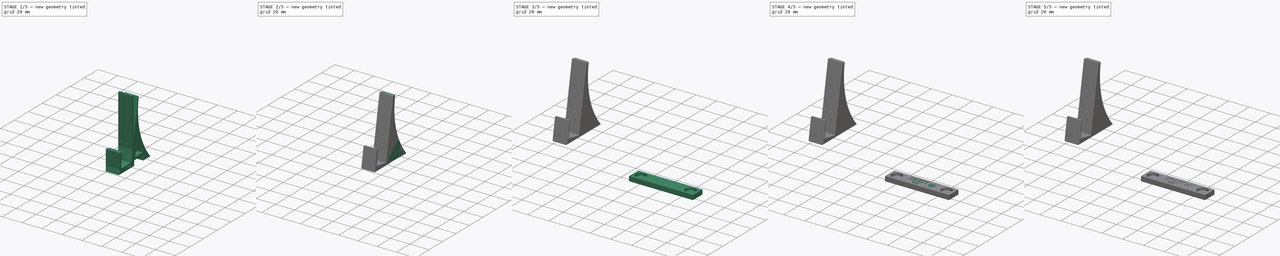
[diagram: build sequence overview — one tinted view per stage of 5, left to right]
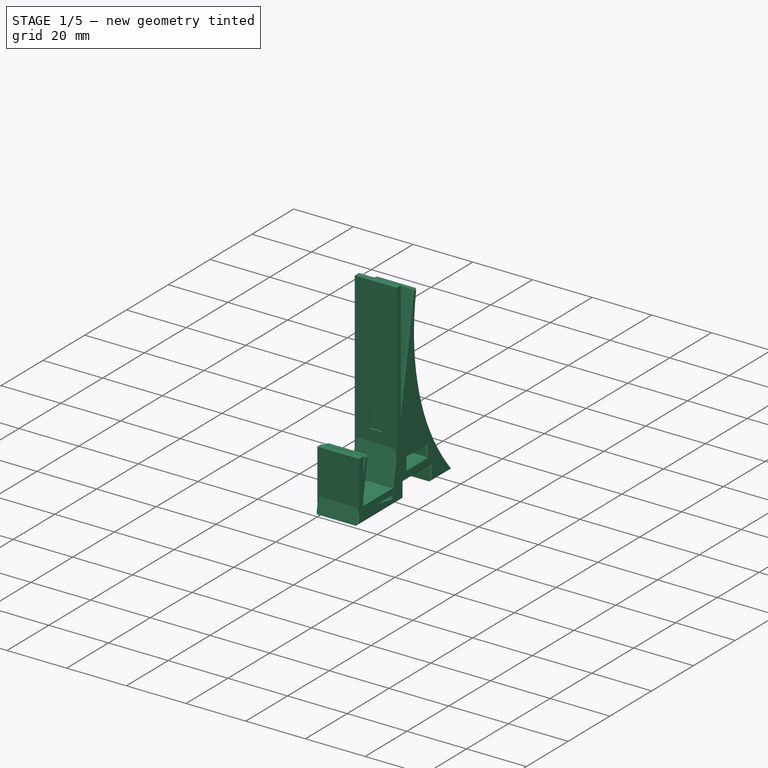
[diagram: stage 1 of 5 — iso view after this stage's code; geometry added in this stage tinted green]
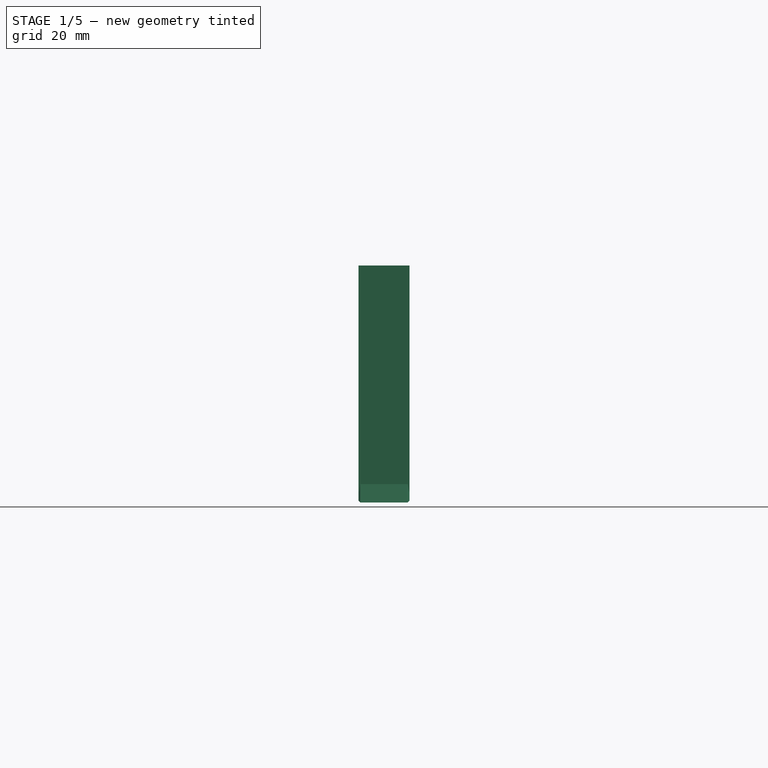
[diagram: stage 1 of 5 — front view after this stage's code; geometry added in this stage tinted green]
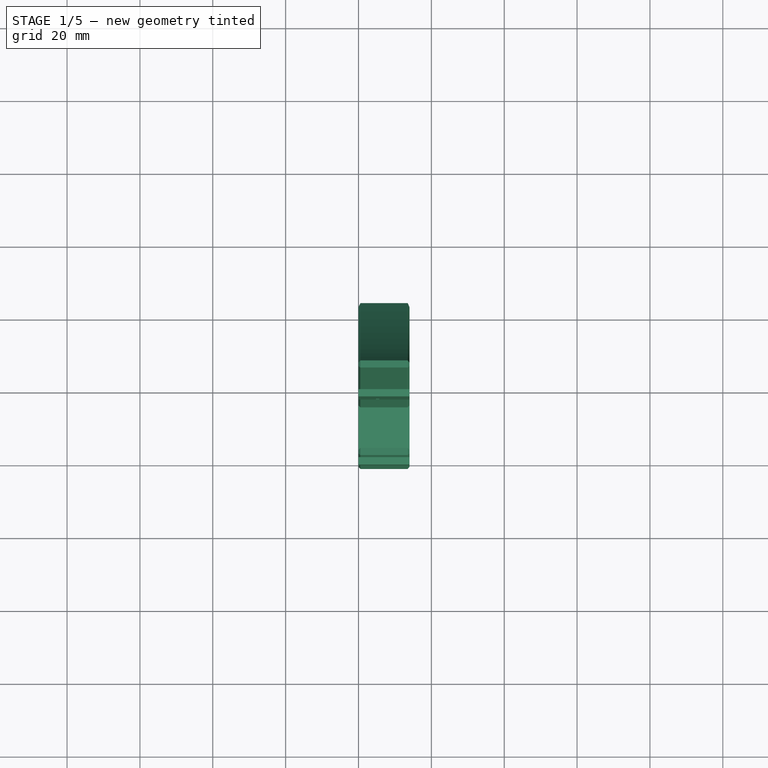
[diagram: stage 1 of 5 — top view after this stage's code; geometry added in this stage tinted green]
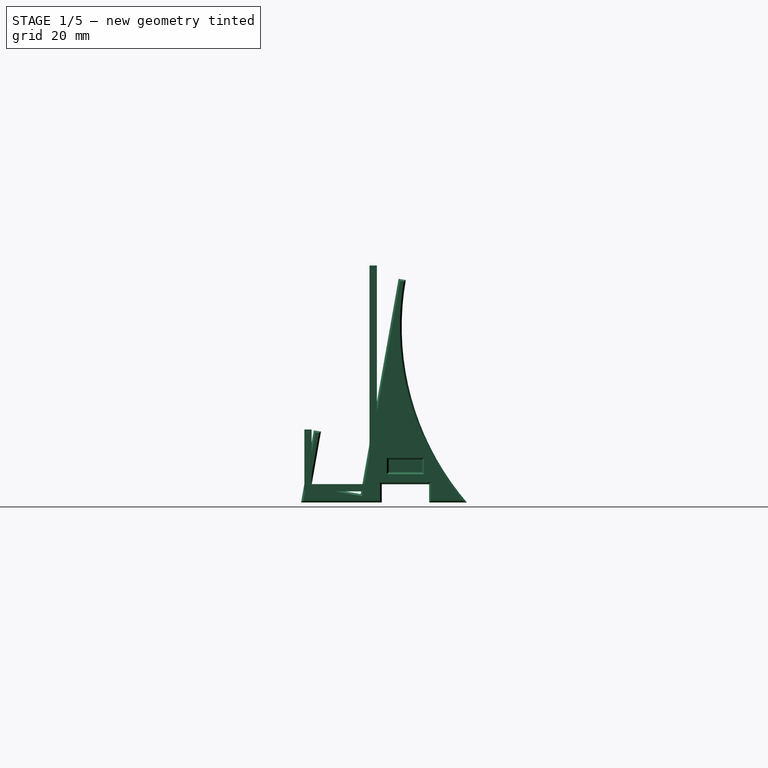
[diagram: stage 1 of 5 — right view after this stage's code; geometry added in this stage tinted green]
FCSTD DOCUMENT  (FreeCAD 0.20R29177 +426 (Git))
Label: DVD Case Kit
License: Creative Commons Attribution-NonCommercial-ShareAlike
LicenseURL: http://creativecommons.org/licenses/by-nc-sa/4.0/
objects: Sketcher::SketchObject×44, PartDesign::Pocket×42, PartDesign::Pad×16, PartDesign::Body×13, Part::Part2DObjectPython×12, PartDesign::Chamfer×11, PartDesign::FeatureBase×9, App::Part×3
note: 216 computed .brp shape members not serialized (recipe doc carries the construction recipe); baked Part::Feature solids carry a one-line shape summary decoded from their .brp

FEATURE [Part::Part2DObjectPython] ShapeString004  label="DVD001"  # Draft 2D object (typed FeaturePython)
  FontFile = F:/16 Bit Git Repro/16 Bit Store/Font/OpenSans-Regular.ttf
  MakeFace = true
  Placement = pos=(11.62,4,5.94) rot=(0,0.707107,0.707107;3.14159rad)
  Size = 4
  String = DVD
  Tracking = 0
FEATURE [Part::Part2DObjectPython] ShapeString005  label="Size003"  # Draft 2D object (typed FeaturePython)
  FontFile = F:/16 Bit Git Repro/16 Bit Store/Font/OpenSans-Regular.ttf
  MakeFace = true
  Placement = pos=(4.05,15.35,15) rot=(1,0,0;1.5708rad)
  Size = 10
  String = S
  Tracking = 0
FEATURE [Part::Part2DObjectPython] ShapeString006  # Draft 2D object (typed FeaturePython)
  FontFile = F:/16 Bit Git Repro/16 Bit Store/Font/OpenSans-Regular.ttf
  MakeFace = true
  Placement = pos=(3.72,7.94,-8.94) rot=(1,0,0;3.14159rad)
  Size = 10
  String = L
  Tracking = 0
FEATURE [Part::Part2DObjectPython] ShapeString007  # Draft 2D object (typed FeaturePython)
  FontFile = F:/16 Bit Git Repro/16 Bit Store/Font/OpenSans-Regular.ttf
  MakeFace = true
  Placement = pos=(3.43,7.94,-8.94) rot=(1,0,0;3.14159rad)
  Size = 10
  String = R
  Tracking = 0
FEATURE [Sketcher::SketchObject] Sketch013
  FullyConstrained = true
  MapMode = 5
  Placement = pos=(0,0,0) rot=(0.57735,0.57735,0.57735;2.0944rad)
  Support = -> [YZ_Plane006]
  sketch-geometry (9):
    g0: LineSegment StartX=15.7 StartY=0 StartZ=0 EndX=15.7 EndY=60 EndZ=0
    g1: LineSegment StartX=15.7 StartY=60 StartZ=0 EndX=17.7 EndY=60 EndZ=0
    g2: LineSegment StartX=17.7 StartY=60 StartZ=0 EndX=17.7 EndY=-2 EndZ=0
    g3: LineSegment StartX=17.7 StartY=-2 StartZ=0 EndX=0.00188043 EndY=-2 EndZ=0
    g4: LineSegment StartX=2 StartY=0 StartZ=0 EndX=2 EndY=15 EndZ=0
    g5: LineSegment StartX=2 StartY=15 StartZ=0 EndX=0 EndY=14.9998 EndZ=0
    g6: LineSegment StartX=0 StartY=14.9998 StartZ=0 EndX=0.00188043 EndY=-2 EndZ=0
    g7: LineSegment StartX=15.7 StartY=0 StartZ=0 EndX=15.7 EndY=-2 EndZ=0
    g8: LineSegment StartX=15.7 StartY=0 StartZ=0 EndX=2 EndY=0 EndZ=0
  constraints (27):
    c: PointOnObject(g0,g-1)
    c: Vertical(g0)
    c: Coincident(g1,g0)
    c: Horizontal(g1)
    c: Coincident(g2,g1)
    c: Vertical(g2)
    c: Coincident(g3,g2)
    c: Horizontal(g3)
    c: Vertical(g4)
    c: Coincident(g5,g4)
    c: PointOnObject(g5,g-2)
    c: Coincident(g6,g5)
    c: Perpendicular(g6,g5)
    c: PointOnObject(g7,g3)
    c: Vertical(g7)
    c: Equal(g5,g7)
    c: Equal(g7,g1)
    c: Distance(g1) = 2
    c: Distance(g0) = 60
    c: Coincident(g7,g0)
    c: Coincident(g8,g0)
    c: Coincident(g8,g4)
    c: Horizontal(g8)
    c: Coincident(g6,g3)
    c: Distance(g4) = 15
    c: Distance(g8) = 13.7
    c: Distance(g5) = 2
FEATURE [PartDesign::Pad] Pad005
  Direction = (1,-2e-16,3e-16)
  Length = 14
  Length2 = 10
  Placement = pos=(0,0,0) rot=(0.57735,0.57735,0.57735;2.0944rad)
  Profile = -> Sketch013
  ReferenceAxis = -> Sketch013 [N_Axis]
  Type = 0
FEATURE [PartDesign::Pocket] Pocket012
  BaseFeature = -> Pad005
  Direction = (0,-1,2e-16)
  Length = 0
  Length2 = 5
  Offset = 0.2
  Placement = pos=(0,0,0) rot=(0.57735,0.57735,0.57735;2.0944rad)
  Profile = -> ShapeString004
  ReferenceAxis = -> ShapeString004 [N_Axis]
  Type = 3
  UpToFace = -> Pad005 [Face7]
FEATURE [PartDesign::Pocket] Pocket013  label="Size002"
  BaseFeature = -> Pocket012
  Direction = (0,1,0)
  Length = 0
  Length2 = 5
  Offset = 0.5
  Placement = pos=(0,0,0) rot=(0.57735,0.57735,0.57735;2.0944rad)
  Profile = -> ShapeString005
  ReferenceAxis = -> ShapeString005 [N_Axis]
  Type = 3
  UpToFace = -> Pocket012 [Face1]
FEATURE [PartDesign::Body] Body004  label="Sm Profile"
  Group = -> [Sketch013,Pad005,ShapeString004,ShapeString005,Pocket012,Pocket013]
  Origin = -> Origin006
  Tip = -> Pocket013
FEATURE [PartDesign::FeatureBase] Clone003
  BaseFeature = -> Body004
  Placement = pos=(0,0,0) rot=(-1,0,0;0.174533rad)
FEATURE [Sketcher::SketchObject] Sketch014
  ExternalGeometry = -> [Clone003]
  FullyConstrained = true
  MapMode = 5
  Placement = pos=(14,-9.5e-15,1e-16) rot=(0.540716,0.6444,0.540716;1.99673rad)
  Support = -> [Clone003]
  sketch-geometry (20):
    g0: LineSegment StartX=17.7 StartY=-2 StartZ=0 EndX=0.00222583 EndY=-5.12261 EndZ=0
    g1: LineSegment StartX=0.00222583 StartY=-5.12261 StartZ=0 EndX=0.00188043 EndY=-2 EndZ=0
    g2: LineSegment StartX=0.00188043 StartY=-2 StartZ=0 EndX=17.7 EndY=-2 EndZ=0
    g3: LineSegment StartX=17.7 StartY=-2 StartZ=0 EndX=17.7 EndY=60 EndZ=0
    g4: LineSegment StartX=17.7 StartY=-2 StartZ=0 EndX=44.8271 EndY=2.78634 EndZ=0
    g5: ArcOfCircle CenterX=91.598 CenterY=60 CenterZ=0 NormalX=0 NormalY=0 NormalZ=1 AngleXU=0 Radius=73.898 StartAngle=3.14159 EndAngle=4.02708
    g6: LineSegment StartX=21.8097 StartY=-1.27488 StartZ=0 EndX=20.9409 EndY=3.64906 EndZ=0
    g7: LineSegment StartX=20.9409 StartY=3.64906 StartZ=0 EndX=33.7432 EndY=5.90791 EndZ=0
    g8: LineSegment StartX=33.7432 StartY=5.90791 StartZ=0 EndX=34.612 EndY=0.983963 EndZ=0
    g9: LineSegment StartX=33.7432 StartY=5.90791 StartZ=0 EndX=40.0754 EndY=7.02516 EndZ=0
    g10: LineSegment StartX=20.9409 StartY=3.64906 StartZ=0 EndX=17.7 EndY=3.07723 EndZ=0
    g11: LineSegment StartX=27.342 StartY=4.77848 StartZ=0 EndX=26.7773 EndY=7.97905 EndZ=0
    g12: LineSegment StartX=22.2473 StartY=7.17976 StartZ=0 EndX=31.3074 EndY=8.77833 EndZ=0
    g13: LineSegment StartX=31.3074 StartY=8.77833 StartZ=0 EndX=30.6992 EndY=12.2251 EndZ=0
    g14: LineSegment StartX=30.6992 StartY=12.2251 StartZ=0 EndX=21.6392 EndY=10.6265 EndZ=0
    g15: LineSegment StartX=21.6392 StartY=10.6265 StartZ=0 EndX=22.2473 EndY=7.17976 EndZ=0
    g16: LineSegment StartX=21.6392 StartY=10.6265 StartZ=0 EndX=17.7 EndY=9.9315 EndZ=0
    g17: LineSegment StartX=30.6992 StartY=12.2251 StartZ=0 EndX=34.6384 EndY=12.9201 EndZ=0
    g18: LineSegment StartX=17.7 StartY=-2 StartZ=0 EndX=21.8097 EndY=-1.27488 EndZ=0
    g19: LineSegment StartX=34.612 StartY=0.983963 StartZ=0 EndX=44.8271 EndY=2.78634 EndZ=0
  constraints (54):
    c: Coincident(g0,g-4)
    c: Coincident(g1,g0)
    c: Coincident(g1,g-3)
    c: Angle(g0,g1) = 1.39626
    c: Coincident(g2,g1)
    c: Coincident(g2,g0)
    c: Coincident(g3,g0)
    c: Coincident(g3,g-4)
    c: Coincident(g4,g0)
    c: Parallel(g0,g4)
    c: Coincident(g5,g4)
    c: Tangent(g5,g3) = 1.5708
    c: PointOnObject(g6,g4)
    c: Coincident(g7,g6)
    c: Coincident(g8,g7)
    c: PointOnObject(g8,g4)
    c: Coincident(g9,g7)
    c: PointOnObject(g9,g5)
    c: Coincident(g10,g6)
    c: PointOnObject(g10,g3)
    c: Coincident(g13,g12)
    c: Coincident(g14,g13)
    c: Coincident(g15,g14)
    c: Coincident(g15,g12)
    c: Coincident(g16,g14)
    c: PointOnObject(g16,g3)
    c: Coincident(g17,g13)
    c: PointOnObject(g17,g5)
    c: Perpendicular(g6,g4)
    c: Perpendicular(g8,g4)
    c: Perpendicular(g7,g8)
    c: Perpendicular(g13,g12)
    c: Perpendicular(g14,g13)
    c: Perpendicular(g15,g14)
    c: Symmetric(g12,g12,g11)
    c: Symmetric(g6,g7,g11)
    c: Perpendicular(g11,g7)
    c: Perpendicular(g12,g11)
    c: Parallel(g10,g7)
    c: Parallel(g9,g7)
    c: Parallel(g17,g16)
    c: Parallel(g16,g14)
    c: Distance(g8) = 5
    c: Distance(g7) = 13
    c: Distance(g13) = 3.5
    c: Distance(g14) = 9.2
    c: Distance(g11) = 3.25
    c: Distance(g17) = 4
    c: Equal(g17,g16)
    c: Coincident(g18,g0)
    c: Coincident(g18,g6)
    c: Coincident(g19,g8)
    c: Coincident(g19,g5)
    c: Parallel(g-5,g1)
FEATURE [PartDesign::Pad] Pad006
  BaseFeature = -> Clone003
  Direction = (1,-6e-16,-1e-16)
  Length = 10
  Length2 = 10
  Placement = pos=(0,0,0) rot=(-1,0,0;0.174533rad)
  Profile = -> Sketch014
  ReferenceAxis = -> Sketch014 [N_Axis]
  Refine = true
  Type = 3
  UpToFace = -> Clone003 [Face3]
FEATURE [PartDesign::FeatureBase] Clone004
  BaseFeature = -> Pad006
  Placement = pos=(0,0,0) rot=(-1,0,0;0.174533rad)
FEATURE [Sketcher::SketchObject] Sketch016
  ExternalGeometry = -> [Clone004]
  FullyConstrained = true
  MapMode = 5
  Placement = pos=(-1.81e-14,0,0) rot=(0.540716,-0.6444,-0.540716;1.99673rad)
  Support = -> [Clone004]
  sketch-geometry (4):
    g0: LineSegment StartX=-30.6992 StartY=12.2251 StartZ=0 EndX=-21.6392 EndY=10.6265 EndZ=0
    g1: LineSegment StartX=-21.6392 StartY=10.6265 StartZ=0 EndX=-22.2473 EndY=7.17976 EndZ=0
    g2: LineSegment StartX=-22.2473 StartY=7.17976 StartZ=0 EndX=-31.3074 EndY=8.77833 EndZ=0
    g3: LineSegment StartX=-30.6992 StartY=12.2251 StartZ=0 EndX=-31.3074 EndY=8.77833 EndZ=0
  constraints (8):
    c: Coincident(g0,g-3)
    c: Coincident(g0,g-4)
    c: Coincident(g1,g0)
    c: Coincident(g1,g-4)
    c: Coincident(g2,g1)
    c: Coincident(g2,g-3)
    c: Coincident(g3,g0)
    c: Coincident(g3,g2)
FEATURE [Sketcher::SketchObject] Sketch018
  ExternalGeometry = -> [Clone004]
  FullyConstrained = true
  MapMode = 5
  Placement = pos=(0,4.98628e-06,-0.0450779) rot=(1,0,0;3.1417rad)
  Support = -> [Clone004]
  sketch-geometry (1):
    g0: Circle CenterX=7 CenterY=-27.7564 CenterZ=0 NormalX=0 NormalY=0 NormalZ=1 AngleXU=0 Radius=2.4
  constraints (2):
    c: Symmetric(g-3,g-4,g0)
    c: Diameter(g0) = 4.8
FEATURE [PartDesign::Pocket] Pocket014
  BaseFeature = -> Clone004
  Direction = (1e-16,-0.000110615,1)
  Length = 11
  Length2 = 5
  Placement = pos=(0,0,0) rot=(-1,0,0;0.174533rad)
  Profile = -> Sketch018
  ReferenceAxis = -> Sketch018 [N_Axis]
  Type = 0
FEATURE [Sketcher::SketchObject] Sketch019
  ExternalGeometry = -> [Pocket014]
  FullyConstrained = true
  MapMode = 5
  Placement = pos=(0,4.98628e-06,-0.0450779) rot=(1,0,0;3.1417rad)
  Support = -> [Pocket014]
  sketch-geometry (1):
    g0: Circle CenterX=7 CenterY=-27.7564 CenterZ=0 NormalX=0 NormalY=0 NormalZ=1 AngleXU=0 Radius=2.6
  constraints (2):
    c: Diameter(g0) = 5.2
    c: Coincident(g-3,g0)
FEATURE [PartDesign::Pocket] Pocket015
  BaseFeature = -> Pocket014
  Direction = (1e-16,-0.000110615,1)
  Length = 5
  Length2 = 5
  Placement = pos=(0,0,0) rot=(-1,0,0;0.174533rad)
  Profile = -> Sketch019
  ReferenceAxis = -> Sketch019 [N_Axis]
  Type = 0
FEATURE [PartDesign::Pad] Pad008
  BaseFeature = -> Pocket015
  Direction = (-1,1e-16,-5e-16)
  Length = 2
  Length2 = 10
  Placement = pos=(0,0,0) rot=(-1,0,0;0.174533rad)
  Profile = -> Sketch016
  ReferenceAxis = -> Sketch016 [N_Axis]
  Refine = true
  Reversed = true
  Type = 0
FEATURE [PartDesign::Chamfer] Chamfer006
  Angle = 45
  Base = -> Pad008 [Face3,Face111]
  BaseFeature = -> Pad008
  ChamferType = 0
  FlipDirection = false
  Placement = pos=(0,0,0) rot=(-1,0,0;0.174533rad)
  Size = 0.5
  Size2 = 1
  SupportTransform = false
  UseAllEdges = false
FEATURE [PartDesign::Body] Body007  label="Sm Kit Right"
  BaseFeature = -> Pocket015
  Group = -> [Clone005,Sketch017,Pad009,Chamfer004,Sketch022,ShapeString007,Pocket021,Pocket023,Sketch026,Pocket027]
  Origin = -> Origin009
  Placement = pos=(148,0,0) rot=(0,0,1;0rad)
  Tip = -> Pocket027
FEATURE [Part::Part2DObjectPython] ShapeString008  label="DVD002"  # Draft 2D object (typed FeaturePython)
  FontFile = F:/16 Bit Git Repro/16 Bit Store/Font/OpenSans-Regular.ttf
  MakeFace = true
  Placement = pos=(11.62,4,5.94) rot=(0,0.707107,0.707107;3.14159rad)
  Size = 4
  String = DVD
  Tracking = 0
FEATURE [Part::Part2DObjectPython] ShapeString009  label="Size005"  # Draft 2D object (typed FeaturePython)
  FontFile = F:/16 Bit Git Repro/16 Bit Store/Font/OpenSans-Regular.ttf
  MakeFace = true
  Placement = pos=(3.72,15.35,15) rot=(1,0,0;1.5708rad)
  Size = 10
  String = L
  Tracking = 0
FEATURE [Part::Part2DObjectPython] ShapeString010  # Draft 2D object (typed FeaturePython)
  FontFile = F:/16 Bit Git Repro/16 Bit Store/Font/OpenSans-Regular.ttf
  MakeFace = true
  Placement = pos=(3.72,7.94,-8.94) rot=(1,0,0;3.14159rad)
  Size = 10
  String = L
  Tracking = 0
FEATURE [Part::Part2DObjectPython] ShapeString011  # Draft 2D object (typed FeaturePython)
  FontFile = F:/16 Bit Git Repro/16 Bit Store/Font/OpenSans-Regular.ttf
  MakeFace = true
  Placement = pos=(3.43,7.94,-8.94) rot=(1,0,0;3.14159rad)
  Size = 10
  String = R
  Tracking = 0
FEATURE [Sketcher::SketchObject] Sketch027
  FullyConstrained = true
  MapMode = 5
  Placement = pos=(0,0,0) rot=(0.57735,0.57735,0.57735;2.0944rad)
  Support = -> [YZ_Plane011]
  sketch-geometry (9):
    g0: LineSegment StartX=17.9 StartY=0 StartZ=0 EndX=17.9 EndY=60 EndZ=0
    g1: LineSegment StartX=17.9 StartY=60 StartZ=0 EndX=19.9 EndY=60 EndZ=0
    g2: LineSegment StartX=19.9 StartY=60 StartZ=0 EndX=19.9 EndY=-2 EndZ=0
    g3: LineSegment StartX=19.9 StartY=-2 StartZ=0 EndX=0 EndY=-2 EndZ=0
    g4: LineSegment StartX=2 StartY=0 StartZ=0 EndX=2 EndY=15 EndZ=0
    g5: LineSegment StartX=2 StartY=15 StartZ=0 EndX=0 EndY=15 EndZ=0
    g6: LineSegment StartX=0 StartY=15 StartZ=0 EndX=0 EndY=-2 EndZ=0
    g7: LineSegment StartX=17.9 StartY=0 StartZ=0 EndX=17.9 EndY=-2 EndZ=0
    g8: LineSegment StartX=17.9 StartY=0 StartZ=0 EndX=2 EndY=0 EndZ=0
  constraints (27):
    c: PointOnObject(g0,g-1)
    c: Vertical(g0)
    c: Coincident(g1,g0)
    c: Horizontal(g1)
    c: Coincident(g2,g1)
    c: Vertical(g2)
    c: Coincident(g3,g2)
    c: Horizontal(g3)
    c: Vertical(g4)
    c: Coincident(g5,g4)
    c: Coincident(g6,g5)
    c: Perpendicular(g6,g5)
    c: PointOnObject(g7,g3)
    c: Vertical(g7)
    c: Equal(g5,g7)
    c: Equal(g7,g1)
    c: Distance(g1) = 2
    c: Distance(g0) = 60
    c: Coincident(g7,g0)
    c: Coincident(g8,g0)
    c: Coincident(g8,g4)
    c: Horizontal(g8)
    c: Coincident(g6,g3)
    c: Distance(g4) = 15
    c: Vertical(g6)
    c: Distance(g8) = 15.9
    c: PointOnObject(g3,g-2)
FEATURE [PartDesign::Pad] Pad010
  Direction = (1,-2e-16,3e-16)
  Length = 14
  Length2 = 10
  Placement = pos=(0,0,0) rot=(0.57735,0.57735,0.57735;2.0944rad)
  Profile = -> Sketch027
  ReferenceAxis = -> Sketch027 [N_Axis]
  Type = 0
FEATURE [PartDesign::Pocket] Pocket028
  BaseFeature = -> Pad010
  Direction = (0,-1,2e-16)
  Length = 0
  Length2 = 5
  Offset = 0.2
  Placement = pos=(0,0,0) rot=(0.57735,0.57735,0.57735;2.0944rad)
  Profile = -> ShapeString008
  ReferenceAxis = -> ShapeString008 [N_Axis]
  Type = 3
  UpToFace = -> Pad010 [Face7]
FEATURE [PartDesign::Pocket] Pocket029  label="Size004"
  BaseFeature = -> Pocket028
  Direction = (0,1,0)
  Length = 0
  Length2 = 5
  Offset = 0.5
  Placement = pos=(0,0,0) rot=(0.57735,0.57735,0.57735;2.0944rad)
  Profile = -> ShapeString009
  ReferenceAxis = -> ShapeString009 [N_Axis]
  Type = 3
  UpToFace = -> Pocket028 [Face1]
FEATURE [PartDesign::Body] Body009  label="Lg Leg"
  BaseFeature = -> Body008
  Group = -> [Clone006,Sketch028,Pad011,Sketch029,Pad012,Chamfer013,Sketch036,Pocket036,Sketch037,Pocket037]
  Origin = -> Origin012
  Placement = pos=(50,0,0) rot=(0,0,1;0rad)
  Tip = -> Pocket037
FEATURE [App::Part] Part002  label="Large"
  Group = -> [Body008,Body009,Body010,Body011]
  Origin = -> Origin010
  Placement = pos=(0,150,0) rot=(0,0,1;0rad)
FEATURE [PartDesign::Pocket] Pocket048
  BaseFeature = -> Chamfer006
  Direction = (-1e-16,0,1)
  Length = 0
  Length2 = 5
  Offset = 0.5
  Placement = pos=(0,0,0) rot=(-1,0,0;0.174533rad)
  Profile = -> Sketch021
  ReferenceAxis = -> Sketch021 [N_Axis]
  Type = 3
  UpToFace = -> Chamfer006 [Face111]
FEATURE [Sketcher::SketchObject] Sketch025
  ExternalGeometry = -> [Pocket048]
  FullyConstrained = true
  MapMode = 5
  Placement = pos=(-6e-16,0.00055806,-5.04508) rot=(1,0,0;3.1417rad)
  Support = -> [Pocket048]
  sketch-geometry (1):
    g0: Circle CenterX=7 CenterY=-16.1204 CenterZ=0 NormalX=0 NormalY=0 NormalZ=1 AngleXU=0 Radius=0.893
  constraints (2):
    c: Diameter(g0) = 1.786
    c: Coincident(g-3,g0)
FEATURE [PartDesign::Pocket] Pocket049
  BaseFeature = -> Pocket048
  Direction = (0,0,1)
  Length = 0
  Length2 = 5
  Offset = 0.5
  Placement = pos=(0,0,0) rot=(-1,0,0;0.174533rad)
  Profile = -> ShapeString006
  ReferenceAxis = -> ShapeString006 [N_Axis]
  Type = 3
  UpToFace = -> Pocket048 [Face111]
FEATURE [PartDesign::Pocket] Pocket050
  BaseFeature = -> Pocket049
  Direction = (1e-16,-0.000110615,1)
  Length = 0
  Length2 = 5
  Offset = 0.5
  Placement = pos=(0,0,0) rot=(-1,0,0;0.174533rad)
  Profile = -> Sketch025
  ReferenceAxis = -> Sketch025 [N_Axis]
  Type = 3
  UpToFace = -> Pocket049 [Face146]
FEATURE [PartDesign::Body] Body006  label="Sm Kit Left"
  BaseFeature = -> Pad006
  Group = -> [Clone004,Pocket014,Pocket015,Sketch019,Sketch018,Sketch016,Pad008,Chamfer006,Sketch021,ShapeString006,Sketch025,Pocket048,Pocket049,Pocket050]
  Origin = -> Origin008
  Placement = pos=(100,0,0) rot=(0,0,1;0rad)
  Tip = -> Pocket050
FEATURE [App::Part] Part001  label="Small"
  Group = -> [Body004,Body005,Body006,Body007]
  Origin = -> Origin005
  Placement = pos=(0,75,0) rot=(0,0,1;0rad)
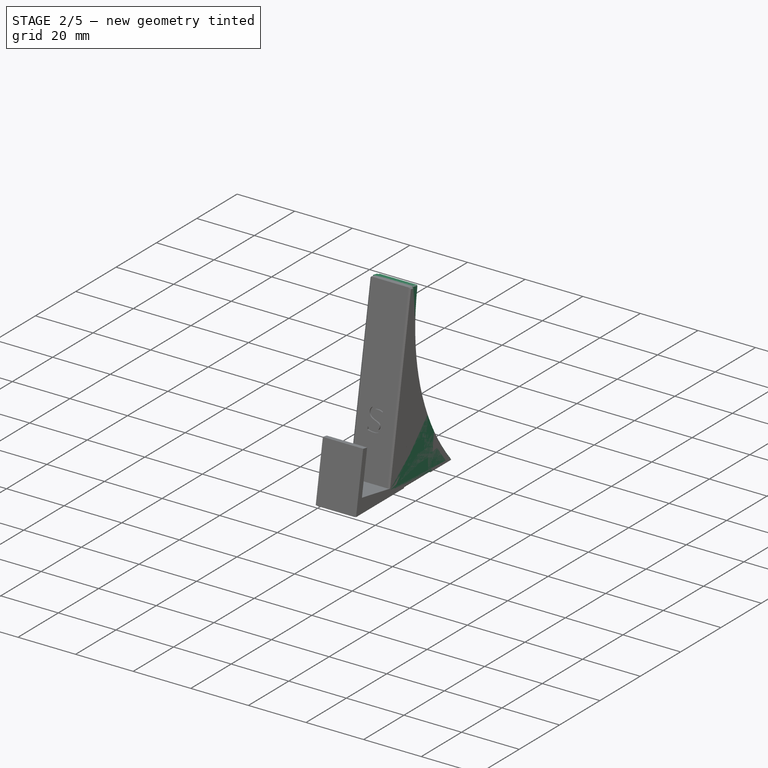
[diagram: stage 2 of 5 — iso view after this stage's code; geometry added in this stage tinted green]
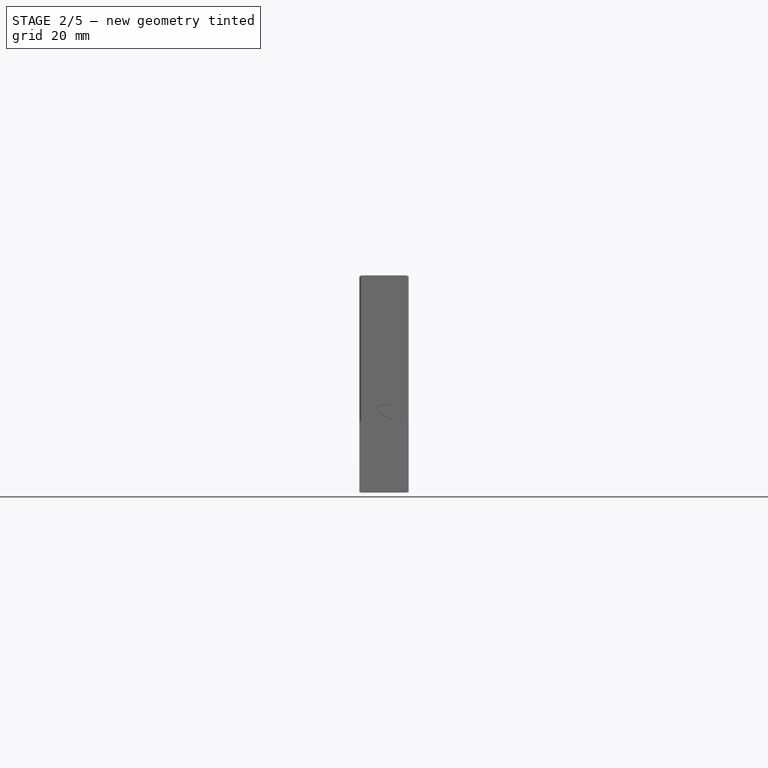
[diagram: stage 2 of 5 — front view after this stage's code; geometry added in this stage tinted green]
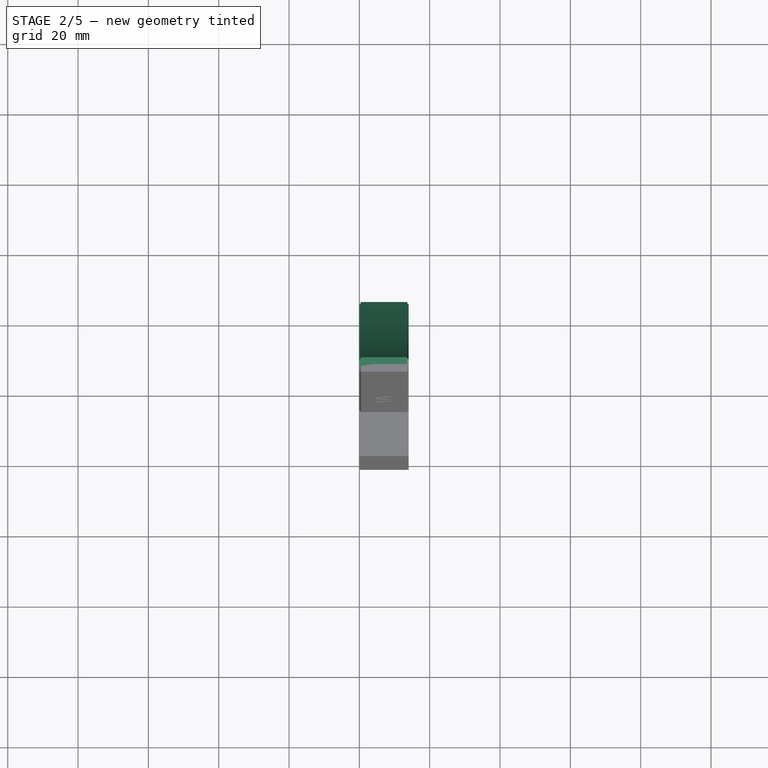
[diagram: stage 2 of 5 — top view after this stage's code; geometry added in this stage tinted green]
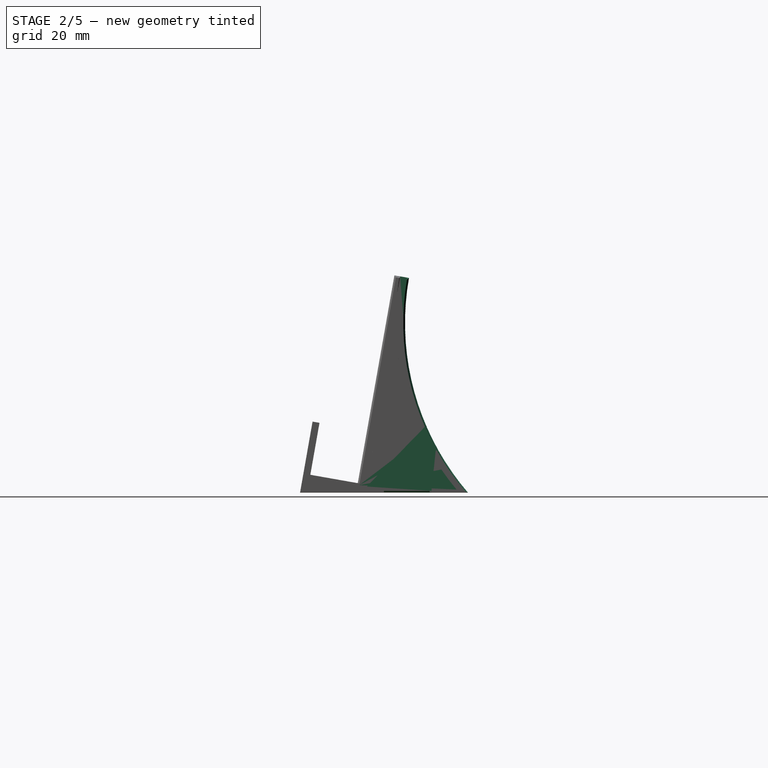
[diagram: stage 2 of 5 — right view after this stage's code; geometry added in this stage tinted green]
FEATURE [Sketcher::SketchObject] Sketch
  FullyConstrained = true
  MapMode = 5
  Placement = pos=(0,0,0) rot=(0.57735,0.57735,0.57735;2.0944rad)
  Support = -> [YZ_Plane001]
  sketch-geometry (9):
    g0: LineSegment StartX=17.35 StartY=0 StartZ=0 EndX=17.35 EndY=60 EndZ=0
    g1: LineSegment StartX=17.35 StartY=60 StartZ=0 EndX=19.35 EndY=60 EndZ=0
    g2: LineSegment StartX=19.35 StartY=60 StartZ=0 EndX=19.35 EndY=-2 EndZ=0
    g3: LineSegment StartX=19.35 StartY=-2 StartZ=0 EndX=8.33562e-06 EndY=-2 EndZ=0
    g4: LineSegment StartX=2 StartY=0 StartZ=0 EndX=2 EndY=15 EndZ=0
    g5: LineSegment StartX=2 StartY=15 StartZ=0 EndX=0 EndY=15 EndZ=0
    g6: LineSegment StartX=0 StartY=15 StartZ=0 EndX=8.33562e-06 EndY=-2 EndZ=0
    g7: LineSegment StartX=17.35 StartY=0 StartZ=0 EndX=17.35 EndY=-2 EndZ=0
    g8: LineSegment StartX=17.35 StartY=0 StartZ=0 EndX=2 EndY=0 EndZ=0
  constraints (27):
    c: PointOnObject(g0,g-1)
    c: Vertical(g0)
    c: Coincident(g1,g0)
    c: Horizontal(g1)
    c: Coincident(g2,g1)
    c: Vertical(g2)
    c: Coincident(g3,g2)
    c: Horizontal(g3)
    c: Vertical(g4)
    c: Coincident(g5,g4)
    c: PointOnObject(g5,g-2)
    c: Coincident(g6,g5)
    c: Perpendicular(g6,g5)
    c: PointOnObject(g7,g3)
    c: Vertical(g7)
    c: Equal(g5,g7)
    c: Equal(g7,g1)
    c: Distance(g1) = 2
    c: Distance(g0) = 60
    c: Coincident(g7,g0)
    c: Coincident(g8,g0)
    c: Coincident(g8,g4)
    c: Horizontal(g8)
    c: Coincident(g6,g3)
    c: Distance(g4) = 15
    c: Distance(g8) = 15.35
    c: Distance(g5) = 2
FEATURE [PartDesign::Pad] Pad
  Direction = (1,-2e-16,3e-16)
  Length = 14
  Length2 = 10
  Placement = pos=(0,0,0) rot=(0.57735,0.57735,0.57735;2.0944rad)
  Profile = -> Sketch
  ReferenceAxis = -> Sketch [N_Axis]
  Type = 0
FEATURE [Part::Part2DObjectPython] ShapeString  label="DVD"  # Draft 2D object (typed FeaturePython)
  FontFile = F:/16 Bit Git Repro/16 Bit Store/Font/OpenSans-Regular.ttf
  MakeFace = true
  Placement = pos=(11.62,4,5.94) rot=(0,0.707107,0.707107;3.14159rad)
  Size = 4
  String = DVD
  Tracking = 0
FEATURE [Part::Part2DObjectPython] ShapeString001  label="Size"  # Draft 2D object (typed FeaturePython)
  FontFile = F:/16 Bit Git Repro/16 Bit Store/Font/OpenSans-Regular.ttf
  MakeFace = true
  Placement = pos=(2.04,15.35,15) rot=(1,0,0;1.5708rad)
  Size = 10
  String = M
  Tracking = 0
FEATURE [PartDesign::Pocket] Pocket
  BaseFeature = -> Pad
  Direction = (-1e-16,-1,0)
  Length = 0
  Length2 = 5
  Offset = 0.2
  Placement = pos=(0,0,0) rot=(0.57735,0.57735,0.57735;2.0944rad)
  Profile = -> ShapeString
  ReferenceAxis = -> ShapeString [N_Axis]
  Type = 3
  UpToFace = -> Pad [Face7]
FEATURE [PartDesign::Pocket] Pocket001  label="Size001"
  BaseFeature = -> Pocket
  Direction = (0,1,0)
  Length = 0
  Length2 = 5
  Offset = 0.5
  Placement = pos=(0,0,0) rot=(0.57735,0.57735,0.57735;2.0944rad)
  Profile = -> ShapeString001
  ReferenceAxis = -> ShapeString001 [N_Axis]
  Type = 3
  UpToFace = -> Pocket [Face1]
FEATURE [PartDesign::Body] Body  label="Med Profile"
  Group = -> [Sketch,Pad,ShapeString,ShapeString001,Pocket,Pocket001]
  Origin = -> Origin001
  Tip = -> Pocket001
FEATURE [PartDesign::FeatureBase] Clone
  BaseFeature = -> Body
  Placement = pos=(0,0,0) rot=(-1,0,0;0.174533rad)
FEATURE [Sketcher::SketchObject] Sketch001
  ExternalGeometry = -> [Clone]
  FullyConstrained = true
  MapMode = 5
  Placement = pos=(14,-7e-16,4.8e-15) rot=(0.540716,0.6444,0.540716;1.99673rad)
  Support = -> [Clone]
  sketch-geometry (20):
    g0: LineSegment StartX=19.35 StartY=-2 StartZ=0 EndX=1.00086e-05 EndY=-5.41194 EndZ=0
    g1: LineSegment StartX=1.00086e-05 StartY=-5.41194 StartZ=0 EndX=8.33562e-06 EndY=-2 EndZ=0
    g2: LineSegment StartX=8.33562e-06 StartY=-2 StartZ=0 EndX=19.35 EndY=-2 EndZ=0
    g3: LineSegment StartX=19.35 StartY=-2 StartZ=0 EndX=19.35 EndY=60 EndZ=0
    g4: LineSegment StartX=19.35 StartY=-2 StartZ=0 EndX=46.478 EndY=2.78341 EndZ=0
    g5: ArcOfCircle CenterX=93.2528 CenterY=60 CenterZ=0 NormalX=0 NormalY=0 NormalZ=1 AngleXU=0 Radius=73.9028 StartAngle=3.14159 EndAngle=4.02707
    g6: LineSegment StartX=23.4585 StartY=-1.27556 StartZ=0 EndX=22.5902 EndY=3.64847 EndZ=0
    g7: LineSegment StartX=22.5902 StartY=3.64847 StartZ=0 EndX=35.3927 EndY=5.90591 EndZ=0
    g8: LineSegment StartX=35.3927 StartY=5.90591 StartZ=0 EndX=36.261 EndY=0.981868 EndZ=0
    g9: LineSegment StartX=35.3927 StartY=5.90591 StartZ=0 EndX=41.7259 EndY=7.02262 EndZ=0
    g10: LineSegment StartX=22.5902 StartY=3.64847 StartZ=0 EndX=19.35 EndY=3.07713 EndZ=0
    g11: LineSegment StartX=28.9915 StartY=4.77719 StartZ=0 EndX=28.4271 EndY=7.97782 EndZ=0
    g12: LineSegment StartX=23.897 StartY=7.17903 StartZ=0 EndX=32.9572 EndY=8.7766 EndZ=0
    g13: LineSegment StartX=32.9572 StartY=8.7766 StartZ=0 EndX=32.3495 EndY=12.2234 EndZ=0
    g14: LineSegment StartX=32.3495 StartY=12.2234 StartZ=0 EndX=23.2892 EndY=10.6259 EndZ=0
    g15: LineSegment StartX=23.2892 StartY=10.6259 StartZ=0 EndX=23.897 EndY=7.17903 EndZ=0
    g16: LineSegment StartX=23.2892 StartY=10.6259 StartZ=0 EndX=19.35 EndY=9.93126 EndZ=0
    g17: LineSegment StartX=32.3495 StartY=12.2234 StartZ=0 EndX=36.2887 EndY=12.918 EndZ=0
    g18: LineSegment StartX=19.35 StartY=-2 StartZ=0 EndX=23.4585 EndY=-1.27556 EndZ=0
    g19: LineSegment StartX=36.261 StartY=0.981868 StartZ=0 EndX=46.478 EndY=2.78341 EndZ=0
  constraints (54):
    c: Coincident(g0,g-4)
    c: Coincident(g1,g0)
    c: Coincident(g1,g-3)
    c: Angle(g0,g1) = 1.39626
    c: Coincident(g2,g1)
    c: Coincident(g2,g0)
    c: Coincident(g3,g0)
    c: Coincident(g3,g-4)
    c: Coincident(g4,g0)
    c: Parallel(g0,g4)
    c: Coincident(g5,g4)
    c: Tangent(g5,g3) = 1.5708
    c: PointOnObject(g6,g4)
    c: Coincident(g7,g6)
    c: Coincident(g8,g7)
    c: PointOnObject(g8,g4)
    c: Coincident(g9,g7)
    c: PointOnObject(g9,g5)
    c: Coincident(g10,g6)
    c: PointOnObject(g10,g3)
    c: Coincident(g13,g12)
    c: Coincident(g14,g13)
    c: Coincident(g15,g14)
    c: Coincident(g15,g12)
    c: Coincident(g16,g14)
    c: PointOnObject(g16,g3)
    c: Coincident(g17,g13)
    c: PointOnObject(g17,g5)
    c: Perpendicular(g6,g4)
    c: Perpendicular(g8,g4)
    c: Perpendicular(g7,g8)
    c: Perpendicular(g13,g12)
    c: Perpendicular(g14,g13)
    c: Perpendicular(g15,g14)
    c: Symmetric(g12,g12,g11)
    c: Symmetric(g6,g7,g11)
    c: Perpendicular(g11,g7)
    c: Perpendicular(g12,g11)
    c: Parallel(g10,g7)
    c: Parallel(g9,g7)
    c: Parallel(g17,g16)
    c: Parallel(g16,g14)
    c: Distance(g8) = 5
    c: Distance(g7) = 13
    c: Distance(g13) = 3.5
    c: Distance(g14) = 9.2
    c: Distance(g11) = 3.25
    c: Distance(g17) = 4
    c: Equal(g17,g16)
    c: Coincident(g18,g0)
    c: Coincident(g18,g6)
    c: Coincident(g19,g8)
    c: Coincident(g19,g5)
    c: Parallel(g-5,g1)
FEATURE [PartDesign::Pad] Pad001
  BaseFeature = -> Clone
  Direction = (1,0,4e-16)
  Length = 10
  Length2 = 10
  Placement = pos=(0,0,0) rot=(-1,0,0;0.174533rad)
  Profile = -> Sketch001
  ReferenceAxis = -> Sketch001 [N_Axis]
  Refine = true
  Type = 3
  UpToFace = -> Clone [Face3]
FEATURE [PartDesign::FeatureBase] Clone001
  BaseFeature = -> Pad001
  Placement = pos=(0,0,0) rot=(-1,0,0;0.174533rad)
FEATURE [Sketcher::SketchObject] Sketch005
  ExternalGeometry = -> [Clone001]
  FullyConstrained = true
  MapMode = 5
  Placement = pos=(1e-16,1.6167e-07,-0.329717) rot=(1,0,0;3.14159rad)
  Support = -> [Clone001]
  sketch-geometry (1):
    g0: Circle CenterX=7 CenterY=-29.3806 CenterZ=0 NormalX=0 NormalY=0 NormalZ=1 AngleXU=0 Radius=2.4
  constraints (2):
    c: Symmetric(g-3,g-4,g0)
    c: Diameter(g0) = 4.8
FEATURE [PartDesign::Pocket] Pocket002
  BaseFeature = -> Clone001
  Direction = (-4e-16,-4.9033e-07,1)
  Length = 11
  Length2 = 5
  Placement = pos=(0,0,0) rot=(-1,0,0;0.174533rad)
  Profile = -> Sketch005
  ReferenceAxis = -> Sketch005 [N_Axis]
  Type = 0
FEATURE [Sketcher::SketchObject] Sketch006
  ExternalGeometry = -> [Pocket002]
  FullyConstrained = true
  MapMode = 5
  Placement = pos=(1e-16,1.6167e-07,-0.329717) rot=(1,0,0;3.14159rad)
  Support = -> [Pocket002]
  sketch-geometry (1):
    g0: Circle CenterX=7 CenterY=-29.3806 CenterZ=0 NormalX=0 NormalY=0 NormalZ=1 AngleXU=0 Radius=2.6
  constraints (2):
    c: Coincident(g0,g-3)
    c: Diameter(g0) = 5.2
FEATURE [PartDesign::Pocket] Pocket003
  BaseFeature = -> Pocket002
  Direction = (-4e-16,-4.9033e-07,1)
  Length = 5
  Length2 = 5
  Placement = pos=(0,0,0) rot=(-1,0,0;0.174533rad)
  Profile = -> Sketch006
  ReferenceAxis = -> Sketch006 [N_Axis]
  Type = 0
FEATURE [PartDesign::FeatureBase] Clone002
  BaseFeature = -> Pocket003
  Placement = pos=(0,0,0) rot=(-1,0,0;0.174533rad)
FEATURE [Sketcher::SketchObject] Sketch015
  ExternalGeometry = -> [Pad006]
  FullyConstrained = true
  MapMode = 5
  Placement = pos=(-1.81e-14,0,0) rot=(0.540716,-0.6444,-0.540716;1.99673rad)
  Support = -> [Pad006]
  sketch-geometry (8):
    g0: LineSegment StartX=-30.6992 StartY=12.2251 StartZ=0 EndX=-21.6392 EndY=10.6265 EndZ=0
    g1: LineSegment StartX=-21.6392 StartY=10.6265 StartZ=0 EndX=-22.2473 EndY=7.17976 EndZ=0
    g2: LineSegment StartX=-22.2473 StartY=7.17976 StartZ=0 EndX=-31.3074 EndY=8.77833 EndZ=0
    g3: LineSegment StartX=-31.3074 StartY=8.77833 StartZ=0 EndX=-30.6992 EndY=12.2251 EndZ=0
    g4: LineSegment StartX=-21.8097 StartY=-1.27488 StartZ=0 EndX=-34.612 EndY=0.983963 EndZ=0
    g5: LineSegment StartX=-34.612 StartY=0.983963 StartZ=0 EndX=-33.7432 EndY=5.90791 EndZ=0
    g6: LineSegment StartX=-33.7432 StartY=5.90791 StartZ=0 EndX=-20.9409 EndY=3.64906 EndZ=0
    g7: LineSegment StartX=-20.9409 StartY=3.64906 StartZ=0 EndX=-21.8097 EndY=-1.27488 EndZ=0
  constraints (16):
    c: Coincident(g0,g-3)
    c: Coincident(g0,g-4)
    c: Coincident(g1,g0)
    c: Coincident(g1,g-4)
    c: Coincident(g2,g1)
    c: Coincident(g2,g-3)
    c: Coincident(g3,g2)
    c: Coincident(g3,g0)
    c: Coincident(g4,g-5)
    c: Coincident(g4,g-6)
    c: Coincident(g5,g4)
    c: Coincident(g5,g-6)
    c: Coincident(g6,g5)
    c: Coincident(g6,g-5)
    c: Coincident(g7,g6)
    c: Coincident(g7,g4)
FEATURE [PartDesign::Pad] Pad007
  BaseFeature = -> Pad006
  Direction = (-1,-1e-16,-4e-16)
  Length = 10
  Length2 = 10
  Placement = pos=(0,0,0) rot=(-1,0,0;0.174533rad)
  Profile = -> Sketch015
  ReferenceAxis = -> Sketch015 [N_Axis]
  Refine = true
  Type = 3
  UpToFace = -> Pad006 [Face105]
FEATURE [PartDesign::Body] Body008  label="Lg Profile"
  Group = -> [Sketch027,Pad010,ShapeString008,ShapeString009,Pocket028,Pocket029]
  Origin = -> Origin011
  Tip = -> Pocket029
FEATURE [PartDesign::FeatureBase] Clone006
  BaseFeature = -> Body008
  Placement = pos=(0,0,0) rot=(-1,0,0;0.174533rad)
FEATURE [Sketcher::SketchObject] Sketch028
  ExternalGeometry = -> [Clone006]
  FullyConstrained = true
  MapMode = 5
  Placement = pos=(14,-9.5e-15,1e-16) rot=(0.540716,0.6444,0.540716;1.99673rad)
  Support = -> [Clone006]
  sketch-geometry (20):
    g0: LineSegment StartX=19.9 StartY=-2 StartZ=0 EndX=1.78e-14 EndY=-5.50891 EndZ=0
    g1: LineSegment StartX=1.76e-14 StartY=-5.50891 StartZ=0 EndX=1.64e-14 EndY=-2 EndZ=0
    g2: LineSegment StartX=1.64e-14 StartY=-2 StartZ=0 EndX=19.9 EndY=-2 EndZ=0
    g3: LineSegment StartX=19.9 StartY=-2 StartZ=0 EndX=19.9 EndY=60 EndZ=0
    g4: LineSegment StartX=19.9 StartY=-2 StartZ=0 EndX=47.028 EndY=2.7834 EndZ=0
    g5: ArcOfCircle CenterX=93.8028 CenterY=60 CenterZ=0 NormalX=0 NormalY=0 NormalZ=1 AngleXU=0 Radius=73.9028 StartAngle=3.14159 EndAngle=4.02707
    g6: LineSegment StartX=24.0085 StartY=-1.27557 StartZ=0 EndX=23.1402 EndY=3.64847 EndZ=0
    g7: LineSegment StartX=23.1402 StartY=3.64847 StartZ=0 EndX=35.9427 EndY=5.9059 EndZ=0
    g8: LineSegment StartX=35.9427 StartY=5.9059 StartZ=0 EndX=36.811 EndY=0.981859 EndZ=0
    g9: LineSegment StartX=35.9427 StartY=5.9059 StartZ=0 EndX=42.2759 EndY=7.02261 EndZ=0
    g10: LineSegment StartX=23.1402 StartY=3.64847 StartZ=0 EndX=19.9 EndY=3.07713 EndZ=0
    g11: LineSegment StartX=29.5415 StartY=4.77718 StartZ=0 EndX=28.9771 EndY=7.97781 EndZ=0
    g12: LineSegment StartX=24.447 StartY=7.17903 StartZ=0 EndX=33.5072 EndY=8.77659 EndZ=0
    g13: LineSegment StartX=33.5072 StartY=8.77659 StartZ=0 EndX=32.8995 EndY=12.2234 EndZ=0
    g14: LineSegment StartX=32.8995 StartY=12.2234 StartZ=0 EndX=23.8392 EndY=10.6259 EndZ=0
    g15: LineSegment StartX=23.8392 StartY=10.6259 StartZ=0 EndX=24.447 EndY=7.17903 EndZ=0
    g16: LineSegment StartX=23.8392 StartY=10.6259 StartZ=0 EndX=19.9 EndY=9.93126 EndZ=0
    g17: LineSegment StartX=32.8995 StartY=12.2234 StartZ=0 EndX=36.8387 EndY=12.918 EndZ=0
    g18: LineSegment StartX=19.9 StartY=-2 StartZ=0 EndX=24.0085 EndY=-1.27557 EndZ=0
    g19: LineSegment StartX=36.811 StartY=0.981859 StartZ=0 EndX=47.028 EndY=2.7834 EndZ=0
  constraints (54):
    c: Coincident(g1,g0)
    c: Angle(g0,g1) = 1.39626
    c: Coincident(g2,g1)
    c: Coincident(g2,g0)
    c: Coincident(g3,g0)
    c: Coincident(g4,g0)
    c: Parallel(g0,g4)
    c: Coincident(g5,g4)
    c: Tangent(g5,g3) = 1.5708
    c: PointOnObject(g6,g4)
    c: Coincident(g7,g6)
    c: Coincident(g8,g7)
    c: PointOnObject(g8,g4)
    c: Coincident(g9,g7)
    c: PointOnObject(g9,g5)
    c: Coincident(g10,g6)
    c: PointOnObject(g10,g3)
    c: Coincident(g13,g12)
    c: Coincident(g14,g13)
    c: Coincident(g15,g14)
    c: Coincident(g15,g12)
    c: Coincident(g16,g14)
    c: PointOnObject(g16,g3)
    c: Coincident(g17,g13)
    c: PointOnObject(g17,g5)
    c: Perpendicular(g6,g4)
    c: Perpendicular(g8,g4)
    c: Perpendicular(g7,g8)
    c: Perpendicular(g13,g12)
    c: Perpendicular(g14,g13)
    c: Perpendicular(g15,g14)
    c: Symmetric(g12,g12,g11)
    c: Symmetric(g6,g7,g11)
    c: Perpendicular(g11,g7)
    c: Perpendicular(g12,g11)
    c: Parallel(g10,g7)
    c: Parallel(g9,g7)
    c: Parallel(g17,g16)
    c: Parallel(g16,g14)
    c: Distance(g8) = 5
    c: Distance(g7) = 13
    c: Distance(g13) = 3.5
    c: Distance(g14) = 9.2
    c: Distance(g11) = 3.25
    c: Distance(g17) = 4
    c: Equal(g17,g16)
    c: Coincident(g18,g0)
    c: Coincident(g18,g6)
    c: Coincident(g19,g8)
    c: Coincident(g19,g5)
    c: Parallel(g-3,g1)
    c: Coincident(g-4,g1)
    c: Coincident(g-3,g0)
    c: Coincident(g3,g-3)
FEATURE [PartDesign::Pad] Pad011
  BaseFeature = -> Clone006
  Direction = (1,-6e-16,-1e-16)
  Length = 10
  Length2 = 10
  Placement = pos=(0,0,0) rot=(-1,0,0;0.174533rad)
  Profile = -> Sketch028
  ReferenceAxis = -> Sketch028 [N_Axis]
  Refine = true
  Type = 3
  UpToFace = -> Clone006 [Face3]
FEATURE [Sketcher::SketchObject] Sketch029
  ExternalGeometry = -> [Pad011]
  FullyConstrained = true
  MapMode = 5
  Placement = pos=(-1.94e-14,0,0) rot=(0.540716,-0.6444,-0.540716;1.99673rad)
  Support = -> [Pad011]
  sketch-geometry (8):
    g0: LineSegment StartX=-32.8995 StartY=12.2234 StartZ=0 EndX=-23.8392 EndY=10.6259 EndZ=0
    g1: LineSegment StartX=-23.8392 StartY=10.6259 StartZ=0 EndX=-24.447 EndY=7.17903 EndZ=0
    g2: LineSegment StartX=-24.447 StartY=7.17903 StartZ=0 EndX=-33.5072 EndY=8.77659 EndZ=0
    g3: LineSegment StartX=-33.5072 StartY=8.77659 StartZ=0 EndX=-32.8995 EndY=12.2234 EndZ=0
    g4: LineSegment StartX=-35.9427 StartY=5.9059 StartZ=0 EndX=-23.1402 EndY=3.64847 EndZ=0
    g5: LineSegment StartX=-23.1402 StartY=3.64847 StartZ=0 EndX=-24.0085 EndY=-1.27557 EndZ=0
    g6: LineSegment StartX=-24.0085 StartY=-1.27557 StartZ=0 EndX=-36.811 EndY=0.981859 EndZ=0
    g7: LineSegment StartX=-36.811 StartY=0.981859 StartZ=0 EndX=-35.9427 EndY=5.9059 EndZ=0
  constraints (16):
    c: Coincident(g0,g-3)
    c: Coincident(g0,g-4)
    c: Coincident(g1,g0)
    c: Coincident(g1,g-4)
    c: Coincident(g2,g1)
    c: Coincident(g2,g-3)
    c: Coincident(g3,g2)
    c: Coincident(g3,g0)
    c: Coincident(g4,g-5)
    c: Coincident(g4,g-6)
    c: Coincident(g5,g4)
    c: Coincident(g5,g-6)
    c: Coincident(g6,g5)
    c: Coincident(g6,g-5)
    c: Coincident(g7,g6)
    c: Coincident(g7,g4)
FEATURE [PartDesign::Pad] Pad012
  BaseFeature = -> Pad011
  Direction = (-1,-1e-16,-4e-16)
  Length = 10
  Length2 = 10
  Placement = pos=(0,0,0) rot=(-1,0,0;0.174533rad)
  Profile = -> Sketch029
  ReferenceAxis = -> Sketch029 [N_Axis]
  Refine = true
  Type = 3
  UpToFace = -> Pad011 [Face75]
FEATURE [PartDesign::Body] Body003  label="Med Kit Right"
  BaseFeature = -> Pocket003
  Group = -> [Clone002,Sketch004,Pad004,Chamfer,Sketch011,ShapeString003,Pocket009,Pocket011,Sketch045,Pocket047]
  Origin = -> Origin004
  Placement = pos=(148,0,0) rot=(0,0,1;0rad)
  Tip = -> Pocket047
FEATURE [App::Part] Part  label="Medlim"
  Group = -> [Body,Body001,Body002,Body003]
  Origin = -> Origin
FEATURE [PartDesign::Chamfer] Chamfer012
  Angle = 45
  Base = -> Pad007 [Face98,Face97]
  BaseFeature = -> Pad007
  ChamferType = 0
  FlipDirection = false
  Placement = pos=(0,0,0) rot=(-1,0,0;0.174533rad)
  Size = 0.5
  Size2 = 1
  SupportTransform = false
  UseAllEdges = false
FEATURE [PartDesign::Body] Body005  label="Sm Leg"
  BaseFeature = -> Body004
  Group = -> [Clone003,Sketch014,Pad006,Sketch015,Pad007,Chamfer012,Sketch023,Pocket024,Sketch024,Pocket025]
  Origin = -> Origin007
  Placement = pos=(50,0,0) rot=(0,0,1;0rad)
  Tip = -> Pocket025
FEATURE [PartDesign::Chamfer] Chamfer013
  Angle = 45
  Base = -> Pad012 [Face68,Face67]
  BaseFeature = -> Pad012
  ChamferType = 0
  FlipDirection = false
  Placement = pos=(0,0,0) rot=(-1,0,0;0.174533rad)
  Size = 0.5
  Size2 = 1
  SupportTransform = false
  UseAllEdges = false
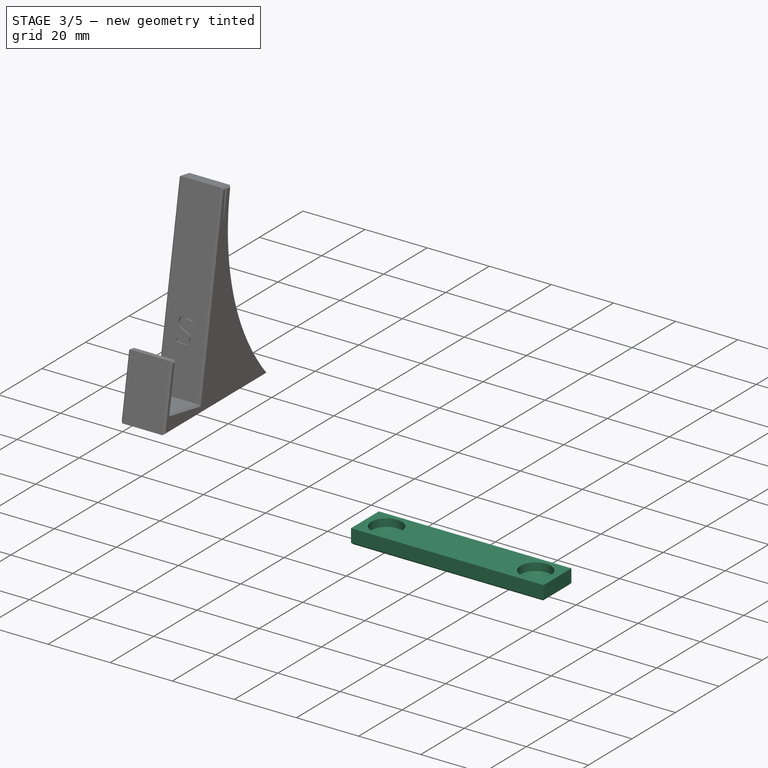
[diagram: stage 3 of 5 — iso view after this stage's code; geometry added in this stage tinted green]
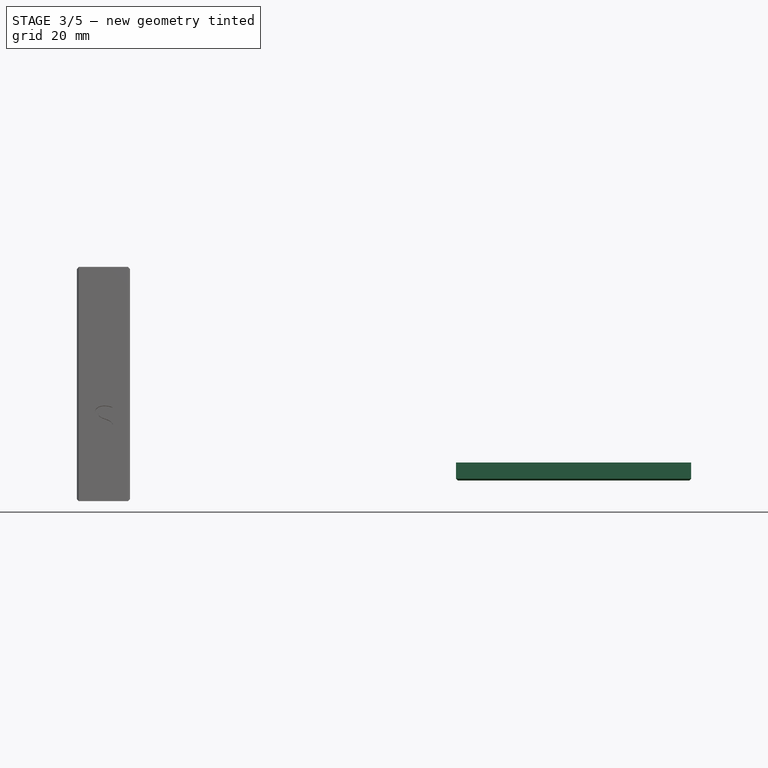
[diagram: stage 3 of 5 — front view after this stage's code; geometry added in this stage tinted green]
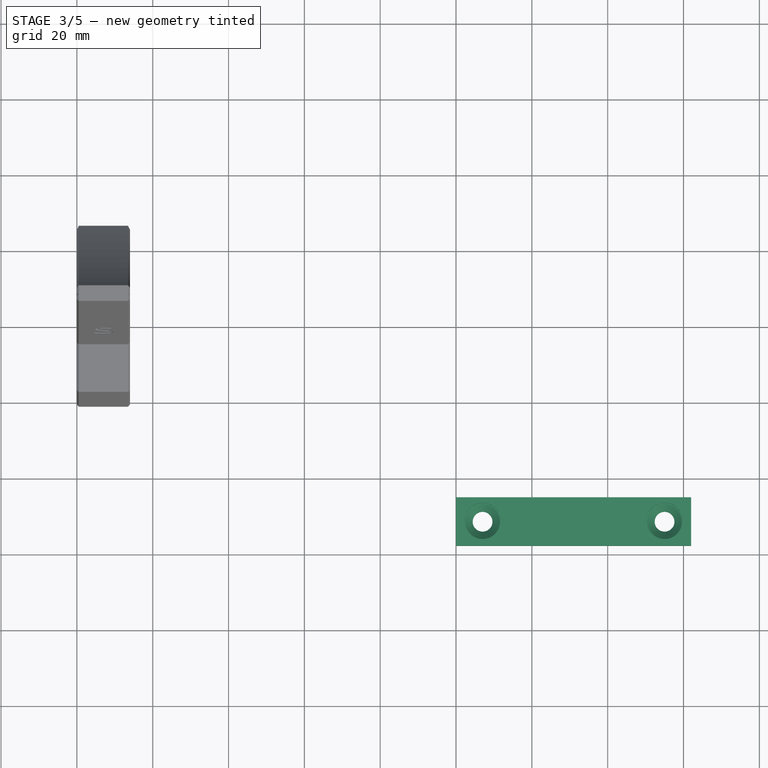
[diagram: stage 3 of 5 — top view after this stage's code; geometry added in this stage tinted green]
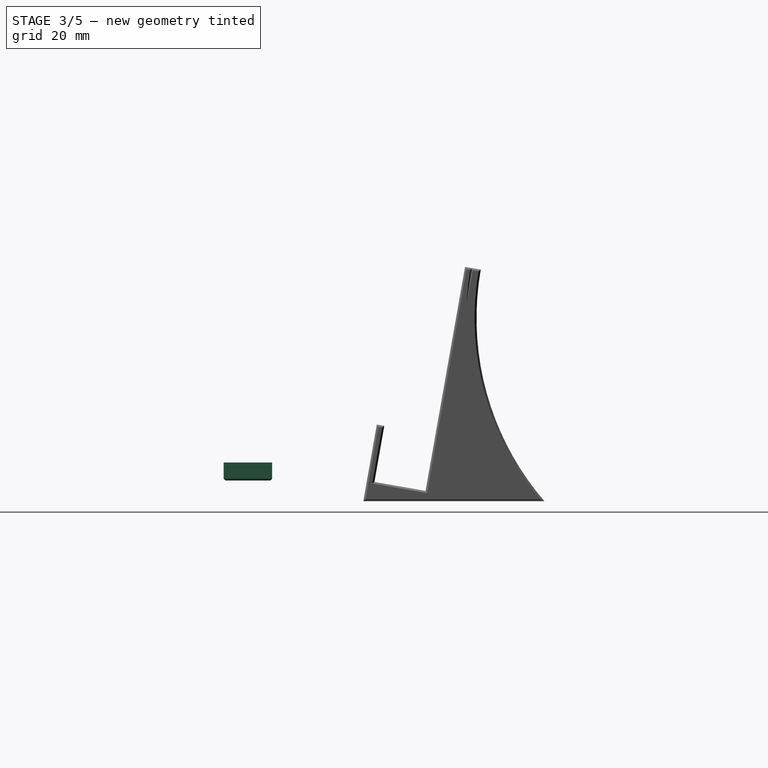
[diagram: stage 3 of 5 — right view after this stage's code; geometry added in this stage tinted green]
FEATURE [PartDesign::Pad] Pad003
  BaseFeature = -> Pocket003
  Direction = (-1,2e-16,1e-16)
  Length = 2
  Length2 = 10
  Placement = pos=(0,0,0) rot=(-1,0,0;0.174533rad)
  Profile = -> Sketch003
  ReferenceAxis = -> Sketch003 [N_Axis]
  Refine = true
  Reversed = true
  Type = 0
FEATURE [Sketcher::SketchObject] Sketch004
  ExternalGeometry = -> [Clone002]
  FullyConstrained = true
  MapMode = 5
  Placement = pos=(14,-1e-16,9e-16) rot=(0.540716,0.6444,0.540716;1.99673rad)
  Support = -> [Clone002]
  sketch-geometry (4):
    g0: LineSegment StartX=23.2892 StartY=10.6259 StartZ=0 EndX=32.3495 EndY=12.2234 EndZ=0
    g1: LineSegment StartX=32.3495 StartY=12.2234 StartZ=0 EndX=32.9572 EndY=8.7766 EndZ=0
    g2: LineSegment StartX=32.9572 StartY=8.7766 StartZ=0 EndX=23.897 EndY=7.17903 EndZ=0
    g3: LineSegment StartX=23.897 StartY=7.17903 StartZ=0 EndX=23.2892 EndY=10.6259 EndZ=0
  constraints (8):
    c: Coincident(g0,g-3)
    c: Coincident(g0,g-4)
    c: Coincident(g1,g0)
    c: Coincident(g1,g-4)
    c: Coincident(g2,g1)
    c: Coincident(g2,g-3)
    c: Coincident(g3,g2)
    c: Coincident(g3,g0)
FEATURE [PartDesign::Pad] Pad004
  BaseFeature = -> Clone002
  Direction = (1,1e-16,1e-16)
  Length = 2
  Length2 = 10
  Placement = pos=(0,0,0) rot=(-1,0,0;0.174533rad)
  Profile = -> Sketch004
  ReferenceAxis = -> Sketch004 [N_Axis]
  Refine = true
  Reversed = true
  Type = 0
FEATURE [PartDesign::Chamfer] Chamfer
  Angle = 45
  Base = -> Pad004 [Face3,Face97]
  BaseFeature = -> Pad004
  ChamferType = 0
  FlipDirection = false
  Placement = pos=(0,0,0) rot=(-1,0,0;0.174533rad)
  Size = 0.5
  Size2 = 1
  SupportTransform = false
  UseAllEdges = false
FEATURE [PartDesign::Chamfer] Chamfer003
  Angle = 45
  Base = -> Pad003 [Face3,Face97]
  BaseFeature = -> Pad003
  ChamferType = 0
  FlipDirection = false
  Placement = pos=(0,0,0) rot=(-1,0,0;0.174533rad)
  Size = 0.5
  Size2 = 1
  SupportTransform = false
  UseAllEdges = false
FEATURE [PartDesign::Body] Body001  label="Med Leg"
  BaseFeature = -> Body
  Group = -> [Clone,Sketch001,Pad001,Sketch002,Pad002,Chamfer002,Sketch009,Pocket004,Sketch012,Pocket005]
  Origin = -> Origin002
  Placement = pos=(50,0,0) rot=(0,0,1;0rad)
  Tip = -> Pocket005
FEATURE [PartDesign::Pocket] Pocket006
  BaseFeature = -> Chamfer003
  Direction = (-1e-16,0,1)
  Length = 0
  Length2 = 5
  Offset = 0.5
  Placement = pos=(0,0,0) rot=(-1,0,0;0.174533rad)
  Profile = -> Sketch010
  ReferenceAxis = -> Sketch010 [N_Axis]
  Type = 3
  UpToFace = -> Chamfer003 [Face97]
FEATURE [PartDesign::Pocket] Pocket008
  BaseFeature = -> Pocket006
  Direction = (0,0,1)
  Length = 0
  Length2 = 5
  Offset = 0.5
  Placement = pos=(0,0,0) rot=(-1,0,0;0.174533rad)
  Profile = -> ShapeString002
  ReferenceAxis = -> ShapeString002 [N_Axis]
  Type = 3
  UpToFace = -> Pocket006 [Face97]
FEATURE [PartDesign::Pocket] Pocket009
  BaseFeature = -> Chamfer
  Direction = (-1e-16,0,1)
  Length = 0
  Length2 = 5
  Offset = 0.5
  Placement = pos=(0,0,0) rot=(-1,0,0;0.174533rad)
  Profile = -> Sketch011
  ReferenceAxis = -> Sketch011 [N_Axis]
  Type = 3
  UpToFace = -> Chamfer [Face97]
FEATURE [PartDesign::Pocket] Pocket011
  BaseFeature = -> Pocket009
  Direction = (0,0,1)
  Length = 0
  Length2 = 5
  Offset = 0.5
  Placement = pos=(0,0,0) rot=(-1,0,0;0.174533rad)
  Profile = -> ShapeString003
  ReferenceAxis = -> ShapeString003 [N_Axis]
  Type = 3
  UpToFace = -> Pocket009 [Face97]
FEATURE [PartDesign::Body] Body011  label="Lg Kit Right"
  BaseFeature = -> Pocket031
  Group = -> [Clone008,Sketch031,Pad014,Chamfer007,Sketch035,ShapeString011,Pocket034,Pocket035,Sketch039,Pocket039]
  Origin = -> Origin014
  Placement = pos=(148,0,0) rot=(0,0,1;0rad)
  Tip = -> Pocket039
FEATURE [Sketcher::SketchObject] Sketch040
  FullyConstrained = true
  MapMode = 5
  Support = -> [XY_Plane015]
  sketch-geometry (4):
    g0: LineSegment StartX=100 StartY=-25 StartZ=0 EndX=162 EndY=-25 EndZ=0
    g1: LineSegment StartX=162 StartY=-25 StartZ=0 EndX=162 EndY=-37.8 EndZ=0
    g2: LineSegment StartX=162 StartY=-37.8 StartZ=0 EndX=100 EndY=-37.8 EndZ=0
    g3: LineSegment StartX=100 StartY=-37.8 StartZ=0 EndX=100 EndY=-25 EndZ=0
  constraints (12):
    c: Coincident(g0,g1)
    c: Coincident(g1,g2)
    c: Coincident(g2,g3)
    c: Coincident(g3,g0)
    c: Horizontal(g0)
    c: Horizontal(g2)
    c: Vertical(g1)
    c: Vertical(g3)
    c: DistanceY(g0,g-1) = 25
    c: DistanceX(g-1,g0) = 100
    c: Distance(g0) = 62
    c: Distance(g1) = 12.8
FEATURE [PartDesign::Pad] Pad015
  Direction = (0,0,1)
  Length = 4.75
  Length2 = 10
  Profile = -> Sketch040
  ReferenceAxis = -> Sketch040 [N_Axis]
  Type = 0
FEATURE [Sketcher::SketchObject] Sketch041
  ExternalGeometry = -> [Pad015]
  FullyConstrained = true
  MapMode = 5
  Placement = pos=(0,0,4.75) rot=(0,0,1;0rad)
  Support = -> [Pad015]
  sketch-geometry (8):
    g0: Circle CenterX=107 CenterY=-31.4 CenterZ=0 NormalX=0 NormalY=0 NormalZ=1 AngleXU=0 Radius=4.925
    g1: Circle CenterX=155 CenterY=-31.4 CenterZ=0 NormalX=0 NormalY=0 NormalZ=1 AngleXU=0 Radius=4.925
    g2: LineSegment StartX=155 StartY=-31.4 StartZ=0 EndX=159.925 EndY=-31.4 EndZ=0
    g3: LineSegment StartX=107 StartY=-31.4 StartZ=0 EndX=102.075 EndY=-31.4 EndZ=0
    g4: LineSegment StartX=159.925 StartY=-31.4 StartZ=0 EndX=162 EndY=-31.4 EndZ=0
    g5: LineSegment StartX=102.075 StartY=-31.4 StartZ=0 EndX=100 EndY=-31.4 EndZ=0
    g6: Circle CenterX=107 CenterY=-31.4 CenterZ=0 NormalX=0 NormalY=0 NormalZ=1 AngleXU=0 Radius=2.6
    g7: Circle CenterX=155 CenterY=-31.4 CenterZ=0 NormalX=0 NormalY=0 NormalZ=1 AngleXU=0 Radius=2.6
  constraints (20):
    c: Coincident(g2,g1)
    c: Horizontal(g2)
    c: Coincident(g3,g0)
    c: PointOnObject(g3,g0)
    c: Horizontal(g3)
    c: PointOnObject(g2,g1)
    c: Coincident(g4,g2)
    c: Horizontal(g4)
    c: Coincident(g5,g3)
    c: Horizontal(g5)
    c: Symmetric(g-3,g-3,g5)
    c: Symmetric(g-4,g-4,g4)
    c: Equal(g1,g0)
    c: Equal(g5,g4)
    c: Distance(g4) = 2.075
    c: Diameter(g1) = 9.85
    c: Coincident(g6,g0)
    c: Coincident(g7,g1)
    c: Diameter(g6) = 5.2
    c: Equal(g6,g7)
FEATURE [PartDesign::Pocket] Pocket040
  BaseFeature = -> Pad015
  Direction = (0,0,-1)
  Length = 2.5
  Length2 = 5
  Profile = -> Sketch041
  ReferenceAxis = -> Sketch041 [N_Axis]
  Type = 0
FEATURE [PartDesign::Pocket] Pocket041
  BaseFeature = -> Pocket040
  Direction = (0,0,-1)
  Length = 5
  Length2 = 5
  Profile = -> Pocket040 [Face13]
  Type = 0
FEATURE [PartDesign::Pocket] Pocket042
  BaseFeature = -> Pocket041
  Direction = (0,0,-1)
  Length = 5
  Length2 = 5
  Profile = -> Pocket041 [Face13]
  Type = 0
FEATURE [PartDesign::Chamfer] Chamfer010
  Angle = 45
  Base = -> Pocket042 [Edge17,Edge19]
  BaseFeature = -> Pocket042
  ChamferType = 0
  FlipDirection = false
  Size = 2
  Size2 = 1
  SupportTransform = false
  UseAllEdges = false
FEATURE [PartDesign::Chamfer] Chamfer011
  Angle = 45
  Base = -> Chamfer010 [Edge7,Edge9,Edge6,Edge8]
  BaseFeature = -> Chamfer010
  ChamferType = 0
  FlipDirection = false
  Size = 0.5
  Size2 = 1
  SupportTransform = false
  UseAllEdges = false
FEATURE [PartDesign::Body] Body012  label="Disc Connecting Bar"
  Group = -> [Sketch040,Pad015,Sketch041,Pocket040,Pocket041,Pocket042,Chamfer010,Chamfer011,Sketch042,Sketch043,Pocket043,Pocket044,Pocket045]
  Origin = -> Origin015
  Tip = -> Pocket045
FEATURE [Sketcher::SketchObject] Sketch044
  ExternalGeometry = -> [Pocket008]
  FullyConstrained = true
  MapMode = 5
  Placement = pos=(2.1e-15,2.36816e-06,-4.82972) rot=(1,0,0;3.14159rad)
  Support = -> [Pocket008]
  sketch-geometry (1):
    g0: Circle CenterX=7 CenterY=-17.7446 CenterZ=0 NormalX=0 NormalY=0 NormalZ=1 AngleXU=0 Radius=0.884
  constraints (2):
    c: Coincident(g0,g-3)
    c: Diameter(g0) = 1.768
FEATURE [PartDesign::Pocket] Pocket046
  BaseFeature = -> Pocket008
  Direction = (-4e-16,-4.9033e-07,1)
  Length = 0.5
  Length2 = 5
  Placement = pos=(0,0,0) rot=(-1,0,0;0.174533rad)
  Profile = -> Sketch044
  ReferenceAxis = -> Sketch044 [N_Axis]
  Type = 0
FEATURE [PartDesign::Body] Body002  label="Med Kit Left"
  BaseFeature = -> Pad001
  Group = -> [Clone001,Pocket002,Pocket003,Sketch006,Sketch005,Sketch003,Pad003,Chamfer003,Sketch010,ShapeString002,Pocket006,Pocket008,Sketch044,Pocket046]
  Origin = -> Origin003
  Placement = pos=(100,0,0) rot=(0,0,1;0rad)
  Tip = -> Pocket046
FEATURE [Sketcher::SketchObject] Sketch045
  ExternalGeometry = -> [Pocket011]
  FullyConstrained = true
  MapMode = 5
  Placement = pos=(2.1e-15,2.36816e-06,-4.82972) rot=(1,0,0;3.14159rad)
  Support = -> [Pocket011]
  sketch-geometry (1):
    g0: Circle CenterX=7 CenterY=-17.7446 CenterZ=0 NormalX=0 NormalY=0 NormalZ=1 AngleXU=0 Radius=0.893
  constraints (2):
    c: Coincident(g0,g-3)
    c: Diameter(g0) = 1.786
FEATURE [PartDesign::Pocket] Pocket047
  BaseFeature = -> Pocket011
  Direction = (-4e-16,-4.9033e-07,1)
  Length = 0.5
  Length2 = 5
  Placement = pos=(0,0,0) rot=(-1,0,0;0.174533rad)
  Profile = -> Sketch045
  ReferenceAxis = -> Sketch045 [N_Axis]
  Type = 0
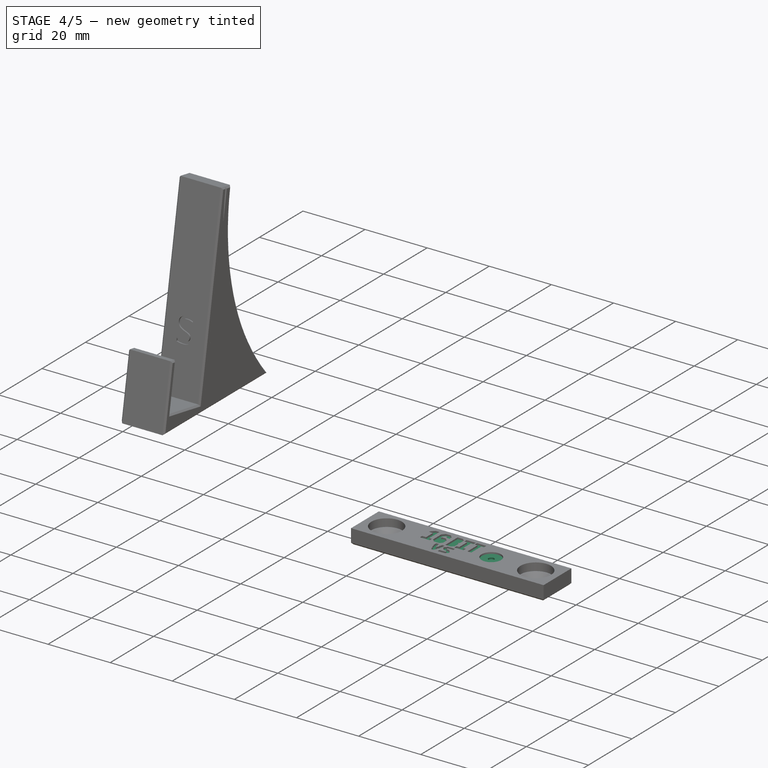
[diagram: stage 4 of 5 — iso view after this stage's code; geometry added in this stage tinted green]
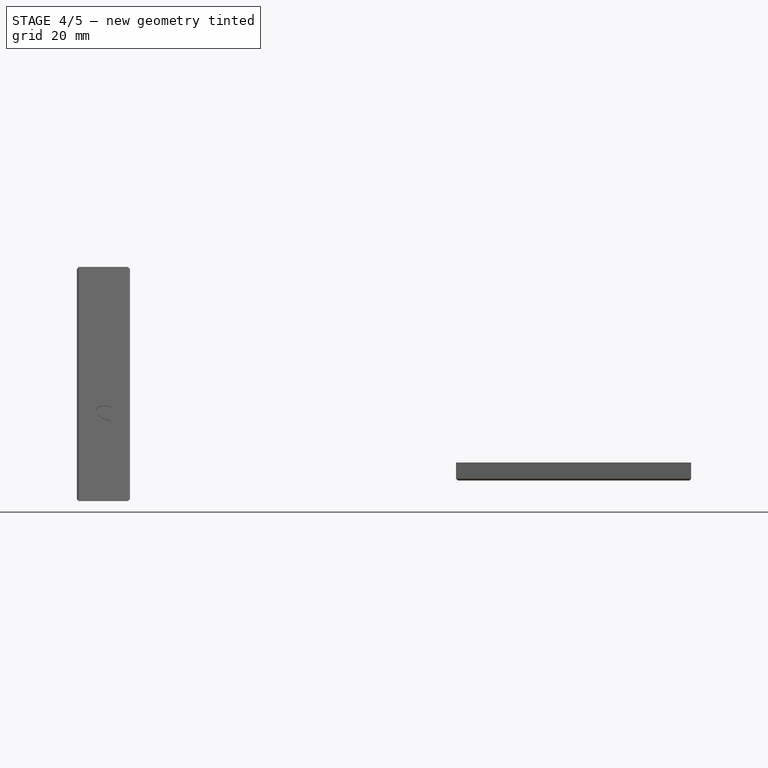
[diagram: stage 4 of 5 — front view after this stage's code; geometry added in this stage tinted green]
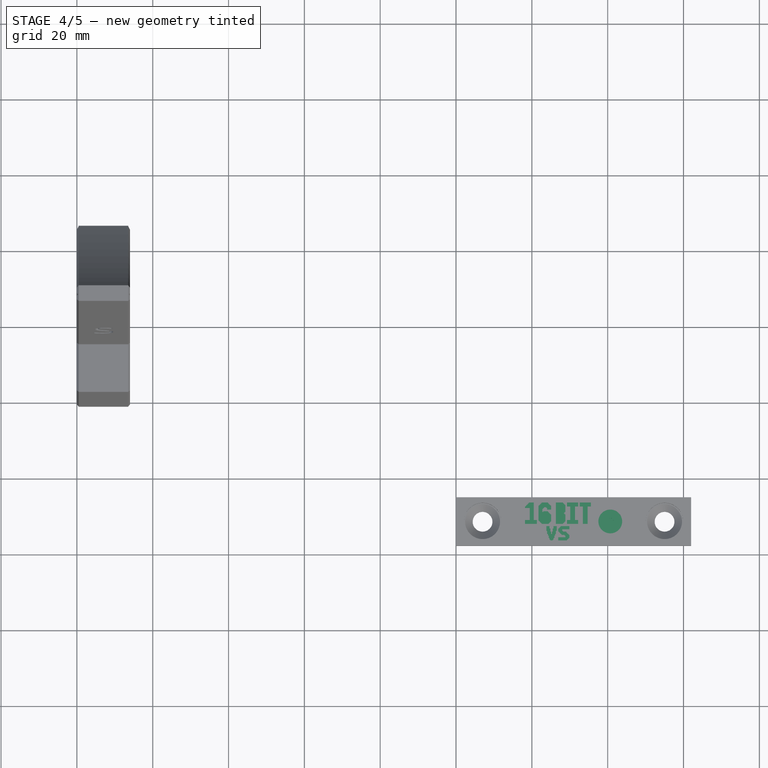
[diagram: stage 4 of 5 — top view after this stage's code; geometry added in this stage tinted green]
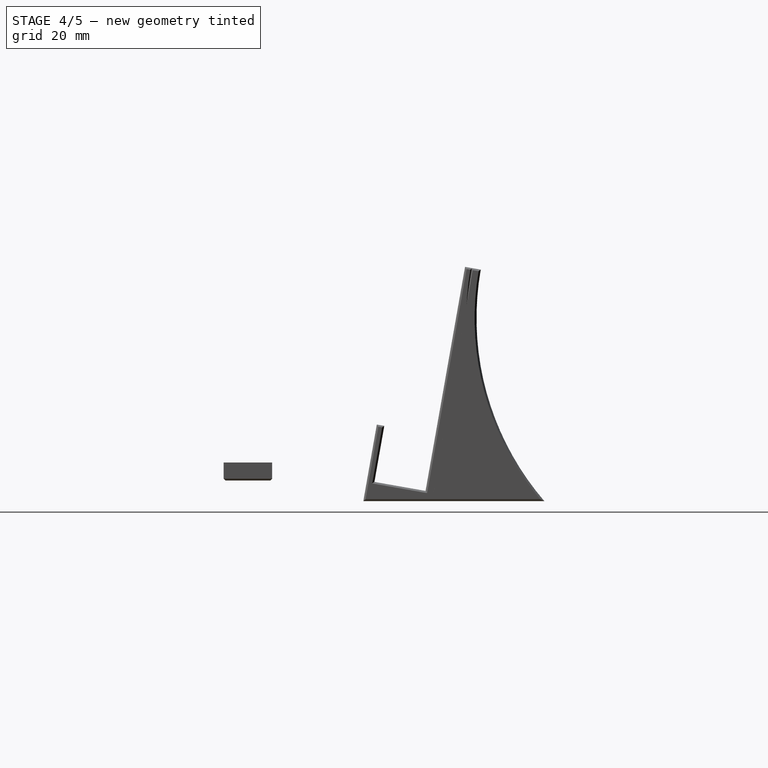
[diagram: stage 4 of 5 — right view after this stage's code; geometry added in this stage tinted green]
FEATURE [PartDesign::FeatureBase] Clone007
  BaseFeature = -> Pad011
  Placement = pos=(0,0,0) rot=(-1,0,0;0.174533rad)
FEATURE [Sketcher::SketchObject] Sketch032
  ExternalGeometry = -> [Clone007]
  FullyConstrained = true
  MapMode = 5
  Placement = pos=(0,-1.696e-13,-0.425214) rot=(1,0,0;3.14159rad)
  Support = -> [Clone007]
  sketch-geometry (1):
    g0: Circle CenterX=7 CenterY=-29.9222 CenterZ=0 NormalX=0 NormalY=0 NormalZ=1 AngleXU=0 Radius=2.4
  constraints (2):
    c: Diameter(g0) = 4.8
    c: Symmetric(g-3,g-4,g0)
FEATURE [PartDesign::Pocket] Pocket030
  BaseFeature = -> Clone007
  Direction = (1e-16,3.992e-13,1)
  Length = 11
  Length2 = 5
  Placement = pos=(0,0,0) rot=(-1,0,0;0.174533rad)
  Profile = -> Sketch032
  ReferenceAxis = -> Sketch032 [N_Axis]
  Type = 0
FEATURE [Sketcher::SketchObject] Sketch033
  ExternalGeometry = -> [Pocket030]
  FullyConstrained = true
  MapMode = 5
  Placement = pos=(0,-1.696e-13,-0.425214) rot=(1,0,0;3.14159rad)
  Support = -> [Pocket030]
  sketch-geometry (1):
    g0: Circle CenterX=7 CenterY=-29.9222 CenterZ=0 NormalX=0 NormalY=0 NormalZ=1 AngleXU=0 Radius=2.6
  constraints (2):
    c: Diameter(g0) = 5.2
    c: Coincident(g-3,g0)
FEATURE [PartDesign::Pocket] Pocket031
  BaseFeature = -> Pocket030
  Direction = (1e-16,3.992e-13,1)
  Length = 5
  Length2 = 5
  Placement = pos=(0,0,0) rot=(-1,0,0;0.174533rad)
  Profile = -> Sketch033
  ReferenceAxis = -> Sketch033 [N_Axis]
  Type = 0
FEATURE [PartDesign::FeatureBase] Clone008
  BaseFeature = -> Pocket031
  Placement = pos=(0,0,0) rot=(-1,0,0;0.174533rad)
FEATURE [Sketcher::SketchObject] Sketch030
  ExternalGeometry = -> [Pocket031]
  FullyConstrained = true
  MapMode = 5
  Placement = pos=(-1.94e-14,0,0) rot=(0.540716,-0.6444,-0.540716;1.99673rad)
  Support = -> [Pocket031]
  sketch-geometry (4):
    g0: LineSegment StartX=-32.8995 StartY=12.2234 StartZ=0 EndX=-33.5072 EndY=8.77659 EndZ=0
    g1: LineSegment StartX=-33.5072 StartY=8.77659 StartZ=0 EndX=-24.447 EndY=7.17903 EndZ=0
    g2: LineSegment StartX=-24.447 StartY=7.17903 StartZ=0 EndX=-23.8392 EndY=10.6259 EndZ=0
    g3: LineSegment StartX=-32.8995 StartY=12.2234 StartZ=0 EndX=-23.8392 EndY=10.6259 EndZ=0
  constraints (8):
    c: Coincident(g1,g0)
    c: Coincident(g2,g1)
    c: Coincident(g3,g0)
    c: Coincident(g3,g2)
    c: Coincident(g0,g-4)
    c: Coincident(g-4,g0)
    c: Coincident(g2,g-3)
    c: Coincident(g-3,g1)
FEATURE [PartDesign::Pad] Pad013
  BaseFeature = -> Pocket031
  Direction = (-1,-1e-16,-4e-16)
  Length = 2
  Length2 = 10
  Placement = pos=(0,0,0) rot=(-1,0,0;0.174533rad)
  Profile = -> Sketch030
  ReferenceAxis = -> Sketch030 [N_Axis]
  Refine = true
  Reversed = true
  Type = 0
FEATURE [PartDesign::Chamfer] Chamfer009
  Angle = 45
  Base = -> Pad013 [Face81,Face3]
  BaseFeature = -> Pad013
  ChamferType = 0
  FlipDirection = false
  Placement = pos=(0,0,0) rot=(-1,0,0;0.174533rad)
  Size = 0.5
  Size2 = 1
  SupportTransform = false
  UseAllEdges = false
FEATURE [Sketcher::SketchObject] Sketch031
  ExternalGeometry = -> [Clone008]
  FullyConstrained = true
  MapMode = 5
  Placement = pos=(14,2.5e-15,7.9e-15) rot=(0.540716,0.6444,0.540716;1.99673rad)
  Support = -> [Clone008]
  sketch-geometry (4):
    g0: LineSegment StartX=33.5072 StartY=8.77659 StartZ=0 EndX=32.8995 EndY=12.2234 EndZ=0
    g1: LineSegment StartX=32.8995 StartY=12.2234 StartZ=0 EndX=23.8392 EndY=10.6259 EndZ=0
    g2: LineSegment StartX=23.8392 StartY=10.6259 StartZ=0 EndX=24.447 EndY=7.17903 EndZ=0
    g3: LineSegment StartX=24.447 StartY=7.17903 StartZ=0 EndX=33.5072 EndY=8.77659 EndZ=0
  constraints (8):
    c: Coincident(g1,g0)
    c: Coincident(g2,g1)
    c: Coincident(g3,g2)
    c: Coincident(g3,g0)
    c: Coincident(g1,g-3)
    c: Coincident(g0,g-4)
    c: Coincident(g2,g-3)
    c: Coincident(g-4,g0)
FEATURE [PartDesign::Pad] Pad014
  BaseFeature = -> Clone008
  Direction = (1,2e-16,6e-16)
  Length = 2
  Length2 = 10
  Placement = pos=(0,0,0) rot=(-1,0,0;0.174533rad)
  Profile = -> Sketch031
  ReferenceAxis = -> Sketch031 [N_Axis]
  Refine = true
  Reversed = true
  Type = 0
FEATURE [PartDesign::Chamfer] Chamfer007
  Angle = 45
  Base = -> Pad014 [Face81,Face3]
  BaseFeature = -> Pad014
  ChamferType = 0
  FlipDirection = false
  Placement = pos=(0,0,0) rot=(-1,0,0;0.174533rad)
  Size = 0.5
  Size2 = 1
  SupportTransform = false
  UseAllEdges = false
FEATURE [Sketcher::SketchObject] Sketch034  label="DVD Icon008"
  AttachmentOffset = pos=(0,0,-9) rot=(0,1,0;3.14159rad)
  ExternalGeometry = -> [Chamfer009]
  FullyConstrained = true
  MapMode = 5
  Placement = pos=(0,0,-9) rot=(0,1,0;3.14159rad)
  Support = -> [XY_Plane013]
  sketch-geometry (3):
    g0: Circle CenterX=-7 CenterY=18.2862 CenterZ=0 NormalX=0 NormalY=0 NormalZ=1 AngleXU=0 Radius=3.136
    g1: LineSegment StartX=-7 StartY=18.2862 StartZ=0 EndX=-7 EndY=21.4222 EndZ=0
    g2: LineSegment StartX=-7 StartY=21.4222 StartZ=0 EndX=-7 EndY=23.4222 EndZ=0
  constraints (8):
    c: Diameter(g0) = 6.272
    c: Coincident(g1,g0)
    c: PointOnObject(g1,g0)
    c: Vertical(g1)
    c: Coincident(g2,g1)
    c: Vertical(g2)
    c: Distance(g2) = 2
    c: Symmetric(g-3,g-3,g2)
FEATURE [PartDesign::Pocket] Pocket032
  BaseFeature = -> Chamfer009
  Direction = (-1e-16,0,1)
  Length = 0
  Length2 = 5
  Offset = 0.5
  Placement = pos=(0,0,0) rot=(-1,0,0;0.174533rad)
  Profile = -> Sketch034
  ReferenceAxis = -> Sketch034 [N_Axis]
  Type = 3
  UpToFace = -> Chamfer009 [Face81]
FEATURE [PartDesign::Pocket] Pocket033
  BaseFeature = -> Pocket032
  Direction = (0,0,1)
  Length = 0
  Length2 = 5
  Offset = 0.5
  Placement = pos=(0,0,0) rot=(-1,0,0;0.174533rad)
  Profile = -> ShapeString010
  ReferenceAxis = -> ShapeString010 [N_Axis]
  Type = 3
  UpToFace = -> Pocket032 [Face81]
FEATURE [Sketcher::SketchObject] Sketch035  label="DVD Icon009"
  AttachmentOffset = pos=(0,0,-9) rot=(0,1,0;3.14159rad)
  ExternalGeometry = -> [Chamfer007]
  FullyConstrained = true
  MapMode = 5
  Placement = pos=(0,0,-9) rot=(0,1,0;3.14159rad)
  Support = -> [XY_Plane014]
  sketch-geometry (3):
    g0: Circle CenterX=-7 CenterY=18.2862 CenterZ=0 NormalX=0 NormalY=0 NormalZ=1 AngleXU=0 Radius=3.136
    g1: LineSegment StartX=-7 StartY=18.2862 StartZ=0 EndX=-7 EndY=21.4222 EndZ=0
    g2: LineSegment StartX=-7 StartY=21.4222 StartZ=0 EndX=-7 EndY=23.4222 EndZ=0
  constraints (8):
    c: Diameter(g0) = 6.272
    c: Coincident(g1,g0)
    c: PointOnObject(g1,g0)
    c: Vertical(g1)
    c: Coincident(g2,g1)
    c: Parallel(g2,g1)
    c: Symmetric(g-3,g-3,g2)
    c: Distance(g2) = 2
FEATURE [PartDesign::Pocket] Pocket034
  BaseFeature = -> Chamfer007
  Direction = (-1e-16,0,1)
  Length = 0
  Length2 = 5
  Offset = 0.5
  Placement = pos=(0,0,0) rot=(-1,0,0;0.174533rad)
  Profile = -> Sketch035
  ReferenceAxis = -> Sketch035 [N_Axis]
  Type = 3
  UpToFace = -> Chamfer007 [Face81]
FEATURE [PartDesign::Pocket] Pocket035
  BaseFeature = -> Pocket034
  Direction = (0,0,1)
  Length = 0
  Length2 = 5
  Offset = 0.5
  Placement = pos=(0,0,0) rot=(-1,0,0;0.174533rad)
  Profile = -> ShapeString011
  ReferenceAxis = -> ShapeString011 [N_Axis]
  Type = 3
  UpToFace = -> Pocket034 [Face81]
FEATURE [Sketcher::SketchObject] Sketch042  label="DVD Icon011"
  AttachmentOffset = pos=(140.68,-31.4,6.75) rot=(0,0,1;0rad)
  FullyConstrained = true
  MapMode = 5
  Placement = pos=(140.68,-31.4,6.75) rot=(0,0,1;0rad)
  Support = -> [XY_Plane015]
  sketch-geometry (2):
    g0: Circle CenterX=0 CenterY=0 CenterZ=0 NormalX=0 NormalY=0 NormalZ=1 AngleXU=0 Radius=3.136
    g1: Circle CenterX=0 CenterY=0 CenterZ=0 NormalX=0 NormalY=0 NormalZ=1 AngleXU=0 Radius=0.893
  constraints (4):
    c: Coincident(g1,g0)
    c: Diameter(g0) = 6.272
    c: Diameter(g1) = 1.786
    c: Coincident(g0,g-1)
FEATURE [Sketcher::SketchObject] Sketch043
  FullyConstrained = false
  Placement = pos=(118.18,-26.4,6.75) rot=(0,0,1;0rad)
  sketch-geometry (400):
    g0: BSplineCurve PolesCount=2 KnotsCount=2 Degree=1 IsPeriodic=0
    g1: BSplineCurve PolesCount=2 KnotsCount=2 Degree=1 IsPeriodic=0
    g2: BSplineCurve PolesCount=2 KnotsCount=2 Degree=1 IsPeriodic=0
    g3: BSplineCurve PolesCount=2 KnotsCount=2 Degree=1 IsPeriodic=0
    g4: BSplineCurve PolesCount=2 KnotsCount=2 Degree=1 IsPeriodic=0
    g5: BSplineCurve PolesCount=2 KnotsCount=2 Degree=1 IsPeriodic=0
    g6: BSplineCurve PolesCount=2 KnotsCount=2 Degree=1 IsPeriodic=0
    g7: BSplineCurve PolesCount=2 KnotsCount=2 Degree=1 IsPeriodic=0
    g8: BSplineCurve PolesCount=2 KnotsCount=2 Degree=1 IsPeriodic=0
    g9: BSplineCurve PolesCount=2 KnotsCount=2 Degree=1 IsPeriodic=0
    g10: BSplineCurve PolesCount=2 KnotsCount=2 Degree=1 IsPeriodic=0
    g11: BSplineCurve PolesCount=2 KnotsCount=2 Degree=1 IsPeriodic=0
    g12: BSplineCurve PolesCount=2 KnotsCount=2 Degree=1 IsPeriodic=0
    g13: BSplineCurve PolesCount=2 KnotsCount=2 Degree=1 IsPeriodic=0
    g14: BSplineCurve PolesCount=2 KnotsCount=2 Degree=1 IsPeriodic=0
    g15: BSplineCurve PolesCount=2 KnotsCount=2 Degree=1 IsPeriodic=0
    g16: BSplineCurve PolesCount=2 KnotsCount=2 Degree=1 IsPeriodic=0
    g17: BSplineCurve PolesCount=2 KnotsCount=2 Degree=1 IsPeriodic=0
    g18: BSplineCurve PolesCount=2 KnotsCount=2 Degree=1 IsPeriodic=0
    g19: BSplineCurve PolesCount=2 KnotsCount=2 Degree=1 IsPeriodic=0
    g20: BSplineCurve PolesCount=2 KnotsCount=2 Degree=1 IsPeriodic=0
    g21: BSplineCurve PolesCount=2 KnotsCount=2 Degree=1 IsPeriodic=0
    g22: BSplineCurve PolesCount=2 KnotsCount=2 Degree=1 IsPeriodic=0
    g23: BSplineCurve PolesCount=2 KnotsCount=2 Degree=1 IsPeriodic=0
    g24: BSplineCurve PolesCount=2 KnotsCount=2 Degree=1 IsPeriodic=0
    g25: BSplineCurve PolesCount=2 KnotsCount=2 Degree=1 IsPeriodic=0
    g26: BSplineCurve PolesCount=2 KnotsCount=2 Degree=1 IsPeriodic=0
    g27: BSplineCurve PolesCount=2 KnotsCount=2 Degree=1 IsPeriodic=0
    g28: BSplineCurve PolesCount=2 KnotsCount=2 Degree=1 IsPeriodic=0
    g29: BSplineCurve PolesCount=2 KnotsCount=2 Degree=1 IsPeriodic=0
    g30: BSplineCurve PolesCount=2 KnotsCount=2 Degree=1 IsPeriodic=0
    g31: BSplineCurve PolesCount=2 KnotsCount=2 Degree=1 IsPeriodic=0
    g32: BSplineCurve PolesCount=2 KnotsCount=2 Degree=1 IsPeriodic=0
    g33: BSplineCurve PolesCount=2 KnotsCount=2 Degree=1 IsPeriodic=0
    g34: BSplineCurve PolesCount=2 KnotsCount=2 Degree=1 IsPeriodic=0
    g35: BSplineCurve PolesCount=2 KnotsCount=2 Degree=1 IsPeriodic=0
    g36: BSplineCurve PolesCount=2 KnotsCount=2 Degree=1 IsPeriodic=0
    g37: BSplineCurve PolesCount=2 KnotsCount=2 Degree=1 IsPeriodic=0
    g38: BSplineCurve PolesCount=2 KnotsCount=2 Degree=1 IsPeriodic=0
    g39: BSplineCurve PolesCount=2 KnotsCount=2 Degree=1 IsPeriodic=0
    g40: BSplineCurve PolesCount=2 KnotsCount=2 Degree=1 IsPeriodic=0
    g41: BSplineCurve PolesCount=2 KnotsCount=2 Degree=1 IsPeriodic=0
    g42: BSplineCurve PolesCount=2 KnotsCount=2 Degree=1 IsPeriodic=0
    g43: BSplineCurve PolesCount=2 KnotsCount=2 Degree=1 IsPeriodic=0
    g44: BSplineCurve PolesCount=2 KnotsCount=2 Degree=1 IsPeriodic=0
    g45: BSplineCurve PolesCount=2 KnotsCount=2 Degree=1 IsPeriodic=0
    g46: BSplineCurve PolesCount=2 KnotsCount=2 Degree=1 IsPeriodic=0
    g47: BSplineCurve PolesCount=2 KnotsCount=2 Degree=1 IsPeriodic=0
    g48: BSplineCurve PolesCount=2 KnotsCount=2 Degree=1 IsPeriodic=0
    g49: BSplineCurve PolesCount=2 KnotsCount=2 Degree=1 IsPeriodic=0
    g50: BSplineCurve PolesCount=2 KnotsCount=2 Degree=1 IsPeriodic=0
    g51: BSplineCurve PolesCount=2 KnotsCount=2 Degree=1 IsPeriodic=0
    g52: BSplineCurve PolesCount=2 KnotsCount=2 Degree=1 IsPeriodic=0
    g53: BSplineCurve PolesCount=2 KnotsCount=2 Degree=1 IsPeriodic=0
    g54: BSplineCurve PolesCount=2 KnotsCount=2 Degree=1 IsPeriodic=0
    g55: BSplineCurve PolesCount=2 KnotsCount=2 Degree=1 IsPeriodic=0
    g56: BSplineCurve PolesCount=2 KnotsCount=2 Degree=1 IsPeriodic=0
    g57: BSplineCurve PolesCount=2 KnotsCount=2 Degree=1 IsPeriodic=0
    g58: BSplineCurve PolesCount=2 KnotsCount=2 Degree=1 IsPeriodic=0
    g59: BSplineCurve PolesCount=2 KnotsCount=2 Degree=1 IsPeriodic=0
    g60: BSplineCurve PolesCount=2 KnotsCount=2 Degree=1 IsPeriodic=0
    g61: BSplineCurve PolesCount=2 KnotsCount=2 Degree=1 IsPeriodic=0
    g62: BSplineCurve PolesCount=2 KnotsCount=2 Degree=1 IsPeriodic=0
    g63: BSplineCurve PolesCount=2 KnotsCount=2 Degree=1 IsPeriodic=0
    g64: BSplineCurve PolesCount=2 KnotsCount=2 Degree=1 IsPeriodic=0
    g65: BSplineCurve PolesCount=2 KnotsCount=2 Degree=1 IsPeriodic=0
    g66: BSplineCurve PolesCount=2 KnotsCount=2 Degree=1 IsPeriodic=0
    g67: BSplineCurve PolesCount=2 KnotsCount=2 Degree=1 IsPeriodic=0
    g68: BSplineCurve PolesCount=2 KnotsCount=2 Degree=1 IsPeriodic=0
    g69: BSplineCurve PolesCount=2 KnotsCount=2 Degree=1 IsPeriodic=0
    g70: BSplineCurve PolesCount=2 KnotsCount=2 Degree=1 IsPeriodic=0
    g71: BSplineCurve PolesCount=2 KnotsCount=2 Degree=1 IsPeriodic=0
    g72: BSplineCurve PolesCount=2 KnotsCount=2 Degree=1 IsPeriodic=0
    g73: BSplineCurve PolesCount=2 KnotsCount=2 Degree=1 IsPeriodic=0
    g74: BSplineCurve PolesCount=2 KnotsCount=2 Degree=1 IsPeriodic=0
    g75: BSplineCurve PolesCount=2 KnotsCount=2 Degree=1 IsPeriodic=0
    g76: BSplineCurve PolesCount=2 KnotsCount=2 Degree=1 IsPeriodic=0
    g77: BSplineCurve PolesCount=2 KnotsCount=2 Degree=1 IsPeriodic=0
    g78: BSplineCurve PolesCount=2 KnotsCount=2 Degree=1 IsPeriodic=0
    g79: BSplineCurve PolesCount=2 KnotsCount=2 Degree=1 IsPeriodic=0
    g80: BSplineCurve PolesCount=2 KnotsCount=2 Degree=1 IsPeriodic=0
    g81: BSplineCurve PolesCount=2 KnotsCount=2 Degree=1 IsPeriodic=0
    g82: BSplineCurve PolesCount=2 KnotsCount=2 Degree=1 IsPeriodic=0
    g83: BSplineCurve PolesCount=2 KnotsCount=2 Degree=1 IsPeriodic=0
    g84: BSplineCurve PolesCount=2 KnotsCount=2 Degree=1 IsPeriodic=0
    g85: BSplineCurve PolesCount=2 KnotsCount=2 Degree=1 IsPeriodic=0
    g86: BSplineCurve PolesCount=2 KnotsCount=2 Degree=1 IsPeriodic=0
    g87: BSplineCurve PolesCount=2 KnotsCount=2 Degree=1 IsPeriodic=0
    g88: BSplineCurve PolesCount=2 KnotsCount=2 Degree=1 IsPeriodic=0
    g89: BSplineCurve PolesCount=2 KnotsCount=2 Degree=1 IsPeriodic=0
    g90: BSplineCurve PolesCount=2 KnotsCount=2 Degree=1 IsPeriodic=0
    g91: BSplineCurve PolesCount=2 KnotsCount=2 Degree=1 IsPeriodic=0
    g92: BSplineCurve PolesCount=2 KnotsCount=2 Degree=1 IsPeriodic=0
    g93: BSplineCurve PolesCount=2 KnotsCount=2 Degree=1 IsPeriodic=0
    g94: BSplineCurve PolesCount=2 KnotsCount=2 Degree=1 IsPeriodic=0
    g95: BSplineCurve PolesCount=2 KnotsCount=2 Degree=1 IsPeriodic=0
    g96: BSplineCurve PolesCount=2 KnotsCount=2 Degree=1 IsPeriodic=0
    g97: BSplineCurve PolesCount=2 KnotsCount=2 Degree=1 IsPeriodic=0
    g98: BSplineCurve PolesCount=2 KnotsCount=2 Degree=1 IsPeriodic=0
    g99: BSplineCurve PolesCount=2 KnotsCount=2 Degree=1 IsPeriodic=0
    g100: BSplineCurve PolesCount=2 KnotsCount=2 Degree=1 IsPeriodic=0
    g101: BSplineCurve PolesCount=2 KnotsCount=2 Degree=1 IsPeriodic=0
    g102: BSplineCurve PolesCount=2 KnotsCount=2 Degree=1 IsPeriodic=0
    g103: BSplineCurve PolesCount=2 KnotsCount=2 Degree=1 IsPeriodic=0
    g104: BSplineCurve PolesCount=2 KnotsCount=2 Degree=1 IsPeriodic=0
    g105: BSplineCurve PolesCount=2 KnotsCount=2 Degree=1 IsPeriodic=0
    g106: BSplineCurve PolesCount=2 KnotsCount=2 Degree=1 IsPeriodic=0
    g107: BSplineCurve PolesCount=2 KnotsCount=2 Degree=1 IsPeriodic=0
    g108: BSplineCurve PolesCount=2 KnotsCount=2 Degree=1 IsPeriodic=0
    g109: BSplineCurve PolesCount=2 KnotsCount=2 Degree=1 IsPeriodic=0
    g110: BSplineCurve PolesCount=2 KnotsCount=2 Degree=1 IsPeriodic=0
    g111: BSplineCurve PolesCount=2 KnotsCount=2 Degree=1 IsPeriodic=0
    g112: BSplineCurve PolesCount=2 KnotsCount=2 Degree=1 IsPeriodic=0
    g113: BSplineCurve PolesCount=2 KnotsCount=2 Degree=1 IsPeriodic=0
    g114: BSplineCurve PolesCount=2 KnotsCount=2 Degree=1 IsPeriodic=0
    g115: BSplineCurve PolesCount=2 KnotsCount=2 Degree=1 IsPeriodic=0
    g116: BSplineCurve PolesCount=2 KnotsCount=2 Degree=1 IsPeriodic=0
    g117: BSplineCurve PolesCount=2 KnotsCount=2 Degree=1 IsPeriodic=0
    g118: BSplineCurve PolesCount=2 KnotsCount=2 Degree=1 IsPeriodic=0
    g119: BSplineCurve PolesCount=2 KnotsCount=2 Degree=1 IsPeriodic=0
    g120: BSplineCurve PolesCount=2 KnotsCount=2 Degree=1 IsPeriodic=0
    g121: BSplineCurve PolesCount=2 KnotsCount=2 Degree=1 IsPeriodic=0
    g122: BSplineCurve PolesCount=2 KnotsCount=2 Degree=1 IsPeriodic=0
    g123: BSplineCurve PolesCount=2 KnotsCount=2 Degree=1 IsPeriodic=0
    g124: BSplineCurve PolesCount=2 KnotsCount=2 Degree=1 IsPeriodic=0
    g125: BSplineCurve PolesCount=2 KnotsCount=2 Degree=1 IsPeriodic=0
    g126: BSplineCurve PolesCount=2 KnotsCount=2 Degree=1 IsPeriodic=0
    g127: BSplineCurve PolesCount=2 KnotsCount=2 Degree=1 IsPeriodic=0
    g128: BSplineCurve PolesCount=2 KnotsCount=2 Degree=1 IsPeriodic=0
    g129: BSplineCurve PolesCount=2 KnotsCount=2 Degree=1 IsPeriodic=0
    g130: BSplineCurve PolesCount=2 KnotsCount=2 Degree=1 IsPeriodic=0
    g131: BSplineCurve PolesCount=2 KnotsCount=2 Degree=1 IsPeriodic=0
    g132: BSplineCurve PolesCount=2 KnotsCount=2 Degree=1 IsPeriodic=0
    g133: BSplineCurve PolesCount=2 KnotsCount=2 Degree=1 IsPeriodic=0
    g134: BSplineCurve PolesCount=2 KnotsCount=2 Degree=1 IsPeriodic=0
    g135: BSplineCurve PolesCount=2 KnotsCount=2 Degree=1 IsPeriodic=0
    g136: BSplineCurve PolesCount=2 KnotsCount=2 Degree=1 IsPeriodic=0
    g137: BSplineCurve PolesCount=2 KnotsCount=2 Degree=1 IsPeriodic=0
    g138: BSplineCurve PolesCount=2 KnotsCount=2 Degree=1 IsPeriodic=0
    g139: BSplineCurve PolesCount=2 KnotsCount=2 Degree=1 IsPeriodic=0
    g140: BSplineCurve PolesCount=2 KnotsCount=2 Degree=1 IsPeriodic=0
    g141: BSplineCurve PolesCount=2 KnotsCount=2 Degree=1 IsPeriodic=0
    g142: BSplineCurve PolesCount=2 KnotsCount=2 Degree=1 IsPeriodic=0
    g143: BSplineCurve PolesCount=2 KnotsCount=2 Degree=1 IsPeriodic=0
    g144: BSplineCurve PolesCount=2 KnotsCount=2 Degree=1 IsPeriodic=0
    g145: BSplineCurve PolesCount=2 KnotsCount=2 Degree=1 IsPeriodic=0
    g146: BSplineCurve PolesCount=2 KnotsCount=2 Degree=1 IsPeriodic=0
    g147: BSplineCurve PolesCount=2 KnotsCount=2 Degree=1 IsPeriodic=0
    g148: BSplineCurve PolesCount=2 KnotsCount=2 Degree=1 IsPeriodic=0
    g149: BSplineCurve PolesCount=2 KnotsCount=2 Degree=1 IsPeriodic=0
    g150: BSplineCurve PolesCount=2 KnotsCount=2 Degree=1 IsPeriodic=0
    g151: BSplineCurve PolesCount=2 KnotsCount=2 Degree=1 IsPeriodic=0
    g152: BSplineCurve PolesCount=2 KnotsCount=2 Degree=1 IsPeriodic=0
    g153: BSplineCurve PolesCount=2 KnotsCount=2 Degree=1 IsPeriodic=0
    g154: BSplineCurve PolesCount=2 KnotsCount=2 Degree=1 IsPeriodic=0
    g155: BSplineCurve PolesCount=2 KnotsCount=2 Degree=1 IsPeriodic=0
    g156: BSplineCurve PolesCount=2 KnotsCount=2 Degree=1 IsPeriodic=0
    g157: BSplineCurve PolesCount=2 KnotsCount=2 Degree=1 IsPeriodic=0
    g158: BSplineCurve PolesCount=2 KnotsCount=2 Degree=1 IsPeriodic=0
    g159: BSplineCurve PolesCount=2 KnotsCount=2 Degree=1 IsPeriodic=0
    g160: BSplineCurve PolesCount=2 KnotsCount=2 Degree=1 IsPeriodic=0
    g161: BSplineCurve PolesCount=2 KnotsCount=2 Degree=1 IsPeriodic=0
    g162: BSplineCurve PolesCount=2 KnotsCount=2 Degree=1 IsPeriodic=0
    g163: BSplineCurve PolesCount=2 KnotsCount=2 Degree=1 IsPeriodic=0
    g164: BSplineCurve PolesCount=2 KnotsCount=2 Degree=1 IsPeriodic=0
    g165: BSplineCurve PolesCount=2 KnotsCount=2 Degree=1 IsPeriodic=0
    g166: BSplineCurve PolesCount=2 KnotsCount=2 Degree=1 IsPeriodic=0
    g167: BSplineCurve PolesCount=2 KnotsCount=2 Degree=1 IsPeriodic=0
    g168: BSplineCurve PolesCount=2 KnotsCount=2 Degree=1 IsPeriodic=0
    g169: BSplineCurve PolesCount=2 KnotsCount=2 Degree=1 IsPeriodic=0
    g170: BSplineCurve PolesCount=2 KnotsCount=2 Degree=1 IsPeriodic=0
    g171: BSplineCurve PolesCount=2 KnotsCount=2 Degree=1 IsPeriodic=0
    g172: BSplineCurve PolesCount=2 KnotsCount=2 Degree=1 IsPeriodic=0
    g173: BSplineCurve PolesCount=2 KnotsCount=2 Degree=1 IsPeriodic=0
    g174: BSplineCurve PolesCount=2 KnotsCount=2 Degree=1 IsPeriodic=0
    g175: BSplineCurve PolesCount=2 KnotsCount=2 Degree=1 IsPeriodic=0
    g176: BSplineCurve PolesCount=2 KnotsCount=2 Degree=1 IsPeriodic=0
    g177: BSplineCurve PolesCount=2 KnotsCount=2 Degree=1 IsPeriodic=0
    g178: BSplineCurve PolesCount=2 KnotsCount=2 Degree=1 IsPeriodic=0
    g179: BSplineCurve PolesCount=2 KnotsCount=2 Degree=1 IsPeriodic=0
    g180: BSplineCurve PolesCount=2 KnotsCount=2 Degree=1 IsPeriodic=0
    g181: BSplineCurve PolesCount=2 KnotsCount=2 Degree=1 IsPeriodic=0
    g182: BSplineCurve PolesCount=2 KnotsCount=2 Degree=1 IsPeriodic=0
    g183: BSplineCurve PolesCount=2 KnotsCount=2 Degree=1 IsPeriodic=0
    g184: BSplineCurve PolesCount=2 KnotsCount=2 Degree=1 IsPeriodic=0
    g185: BSplineCurve PolesCount=2 KnotsCount=2 Degree=1 IsPeriodic=0
    g186: BSplineCurve PolesCount=2 KnotsCount=2 Degree=1 IsPeriodic=0
    g187: BSplineCurve PolesCount=2 KnotsCount=2 Degree=1 IsPeriodic=0
    g188: BSplineCurve PolesCount=2 KnotsCount=2 Degree=1 IsPeriodic=0
    g189: BSplineCurve PolesCount=2 KnotsCount=2 Degree=1 IsPeriodic=0
    g190: BSplineCurve PolesCount=2 KnotsCount=2 Degree=1 IsPeriodic=0
    g191: BSplineCurve PolesCount=2 KnotsCount=2 Degree=1 IsPeriodic=0
    g192: BSplineCurve PolesCount=2 KnotsCount=2 Degree=1 IsPeriodic=0
    g193: BSplineCurve PolesCount=2 KnotsCount=2 Degree=1 IsPeriodic=0
    g194: BSplineCurve PolesCount=2 KnotsCount=2 Degree=1 IsPeriodic=0
    g195: BSplineCurve PolesCount=2 KnotsCount=2 Degree=1 IsPeriodic=0
    g196: BSplineCurve PolesCount=2 KnotsCount=2 Degree=1 IsPeriodic=0
    g197: BSplineCurve PolesCount=2 KnotsCount=2 Degree=1 IsPeriodic=0
    g198: BSplineCurve PolesCount=2 KnotsCount=2 Degree=1 IsPeriodic=0
    g199: BSplineCurve PolesCount=2 KnotsCount=2 Degree=1 IsPeriodic=0
    g200: BSplineCurve PolesCount=2 KnotsCount=2 Degree=1 IsPeriodic=0
    g201: BSplineCurve PolesCount=2 KnotsCount=2 Degree=1 IsPeriodic=0
    g202: BSplineCurve PolesCount=2 KnotsCount=2 Degree=1 IsPeriodic=0
    g203: BSplineCurve PolesCount=2 KnotsCount=2 Degree=1 IsPeriodic=0
    g204: BSplineCurve PolesCount=2 KnotsCount=2 Degree=1 IsPeriodic=0
    g205: BSplineCurve PolesCount=2 KnotsCount=2 Degree=1 IsPeriodic=0
    g206: BSplineCurve PolesCount=2 KnotsCount=2 Degree=1 IsPeriodic=0
    g207: BSplineCurve PolesCount=2 KnotsCount=2 Degree=1 IsPeriodic=0
    g208: BSplineCurve PolesCount=2 KnotsCount=2 Degree=1 IsPeriodic=0
    g209: BSplineCurve PolesCount=2 KnotsCount=2 Degree=1 IsPeriodic=0
    g210: BSplineCurve PolesCount=2 KnotsCount=2 Degree=1 IsPeriodic=0
    g211: BSplineCurve PolesCount=2 KnotsCount=2 Degree=1 IsPeriodic=0
    g212: BSplineCurve PolesCount=2 KnotsCount=2 Degree=1 IsPeriodic=0
    g213: BSplineCurve PolesCount=2 KnotsCount=2 Degree=1 IsPeriodic=0
    g214: BSplineCurve PolesCount=2 KnotsCount=2 Degree=1 IsPeriodic=0
    g215: BSplineCurve PolesCount=2 KnotsCount=2 Degree=1 IsPeriodic=0
    g216: BSplineCurve PolesCount=2 KnotsCount=2 Degree=1 IsPeriodic=0
    g217: BSplineCurve PolesCount=2 KnotsCount=2 Degree=1 IsPeriodic=0
    g218: BSplineCurve PolesCount=2 KnotsCount=2 Degree=1 IsPeriodic=0
    g219: BSplineCurve PolesCount=2 KnotsCount=2 Degree=1 IsPeriodic=0
    g220: BSplineCurve PolesCount=2 KnotsCount=2 Degree=1 IsPeriodic=0
    g221: BSplineCurve PolesCount=2 KnotsCount=2 Degree=1 IsPeriodic=0
    g222: BSplineCurve PolesCount=2 KnotsCount=2 Degree=1 IsPeriodic=0
    g223: BSplineCurve PolesCount=2 KnotsCount=2 Degree=1 IsPeriodic=0
    g224: BSplineCurve PolesCount=2 KnotsCount=2 Degree=1 IsPeriodic=0
    g225: BSplineCurve PolesCount=2 KnotsCount=2 Degree=1 IsPeriodic=0
    g226: BSplineCurve PolesCount=2 KnotsCount=2 Degree=1 IsPeriodic=0
    g227: BSplineCurve PolesCount=2 KnotsCount=2 Degree=1 IsPeriodic=0
    g228: BSplineCurve PolesCount=2 KnotsCount=2 Degree=1 IsPeriodic=0
    g229: BSplineCurve PolesCount=2 KnotsCount=2 Degree=1 IsPeriodic=0
    g230: BSplineCurve PolesCount=2 KnotsCount=2 Degree=1 IsPeriodic=0
    g231: BSplineCurve PolesCount=2 KnotsCount=2 Degree=1 IsPeriodic=0
    g232: BSplineCurve PolesCount=2 KnotsCount=2 Degree=1 IsPeriodic=0
    g233: BSplineCurve PolesCount=2 KnotsCount=2 Degree=1 IsPeriodic=0
    g234: BSplineCurve PolesCount=2 KnotsCount=2 Degree=1 IsPeriodic=0
    g235: BSplineCurve PolesCount=2 KnotsCount=2 Degree=1 IsPeriodic=0
    g236: BSplineCurve PolesCount=2 KnotsCount=2 Degree=1 IsPeriodic=0
    g237: BSplineCurve PolesCount=2 KnotsCount=2 Degree=1 IsPeriodic=0
    g238: BSplineCurve PolesCount=2 KnotsCount=2 Degree=1 IsPeriodic=0
    g239: BSplineCurve PolesCount=2 KnotsCount=2 Degree=1 IsPeriodic=0
    g240: BSplineCurve PolesCount=2 KnotsCount=2 Degree=1 IsPeriodic=0
    g241: BSplineCurve PolesCount=2 KnotsCount=2 Degree=1 IsPeriodic=0
    g242: BSplineCurve PolesCount=2 KnotsCount=2 Degree=1 IsPeriodic=0
    g243: BSplineCurve PolesCount=2 KnotsCount=2 Degree=1 IsPeriodic=0
    g244: BSplineCurve PolesCount=2 KnotsCount=2 Degree=1 IsPeriodic=0
    g245: BSplineCurve PolesCount=2 KnotsCount=2 Degree=1 IsPeriodic=0
    g246: BSplineCurve PolesCount=2 KnotsCount=2 Degree=1 IsPeriodic=0
    g247: BSplineCurve PolesCount=2 KnotsCount=2 Degree=1 IsPeriodic=0
    g248: BSplineCurve PolesCount=2 KnotsCount=2 Degree=1 IsPeriodic=0
    g249: BSplineCurve PolesCount=2 KnotsCount=2 Degree=1 IsPeriodic=0
    g250: BSplineCurve PolesCount=2 KnotsCount=2 Degree=1 IsPeriodic=0
    g251: BSplineCurve PolesCount=2 KnotsCount=2 Degree=1 IsPeriodic=0
    g252: BSplineCurve PolesCount=2 KnotsCount=2 Degree=1 IsPeriodic=0
    g253: BSplineCurve PolesCount=2 KnotsCount=2 Degree=1 IsPeriodic=0
    g254: BSplineCurve PolesCount=2 KnotsCount=2 Degree=1 IsPeriodic=0
    g255: BSplineCurve PolesCount=2 KnotsCount=2 Degree=1 IsPeriodic=0
    g256: BSplineCurve PolesCount=2 KnotsCount=2 Degree=1 IsPeriodic=0
    g257: BSplineCurve PolesCount=2 KnotsCount=2 Degree=1 IsPeriodic=0
    g258: BSplineCurve PolesCount=2 KnotsCount=2 Degree=1 IsPeriodic=0
    g259: BSplineCurve PolesCount=2 KnotsCount=2 Degree=1 IsPeriodic=0
    g260: BSplineCurve PolesCount=2 KnotsCount=2 Degree=1 IsPeriodic=0
    g261: BSplineCurve PolesCount=2 KnotsCount=2 Degree=1 IsPeriodic=0
    g262: BSplineCurve PolesCount=2 KnotsCount=2 Degree=1 IsPeriodic=0
    g263: BSplineCurve PolesCount=2 KnotsCount=2 Degree=1 IsPeriodic=0
    g264: BSplineCurve PolesCount=2 KnotsCount=2 Degree=1 IsPeriodic=0
    g265: BSplineCurve PolesCount=2 KnotsCount=2 Degree=1 IsPeriodic=0
    g266: BSplineCurve PolesCount=2 KnotsCount=2 Degree=1 IsPeriodic=0
    g267: BSplineCurve PolesCount=2 KnotsCount=2 Degree=1 IsPeriodic=0
    g268: BSplineCurve PolesCount=2 KnotsCount=2 Degree=1 IsPeriodic=0
    g269: BSplineCurve PolesCount=2 KnotsCount=2 Degree=1 IsPeriodic=0
    g270: BSplineCurve PolesCount=2 KnotsCount=2 Degree=1 IsPeriodic=0
    g271: BSplineCurve PolesCount=2 KnotsCount=2 Degree=1 IsPeriodic=0
    g272: BSplineCurve PolesCount=2 KnotsCount=2 Degree=1 IsPeriodic=0
    g273: BSplineCurve PolesCount=2 KnotsCount=2 Degree=1 IsPeriodic=0
    g274: BSplineCurve PolesCount=2 KnotsCount=2 Degree=1 IsPeriodic=0
    g275: BSplineCurve PolesCount=2 KnotsCount=2 Degree=1 IsPeriodic=0
    g276: BSplineCurve PolesCount=2 KnotsCount=2 Degree=1 IsPeriodic=0
    g277: BSplineCurve PolesCount=2 KnotsCount=2 Degree=1 IsPeriodic=0
    g278: BSplineCurve PolesCount=2 KnotsCount=2 Degree=1 IsPeriodic=0
    g279: BSplineCurve PolesCount=2 KnotsCount=2 Degree=1 IsPeriodic=0
    g280: BSplineCurve PolesCount=2 KnotsCount=2 Degree=1 IsPeriodic=0
    g281: BSplineCurve PolesCount=2 KnotsCount=2 Degree=1 IsPeriodic=0
    g282: BSplineCurve PolesCount=2 KnotsCount=2 Degree=1 IsPeriodic=0
    g283: BSplineCurve PolesCount=2 KnotsCount=2 Degree=1 IsPeriodic=0
    g284: BSplineCurve PolesCount=2 KnotsCount=2 Degree=1 IsPeriodic=0
    g285: BSplineCurve PolesCount=2 KnotsCount=2 Degree=1 IsPeriodic=0
    g286: BSplineCurve PolesCount=2 KnotsCount=2 Degree=1 IsPeriodic=0
    g287: BSplineCurve PolesCount=2 KnotsCount=2 Degree=1 IsPeriodic=0
    g288: BSplineCurve PolesCount=2 KnotsCount=2 Degree=1 IsPeriodic=0
    g289: BSplineCurve PolesCount=2 KnotsCount=2 Degree=1 IsPeriodic=0
    g290: BSplineCurve PolesCount=2 KnotsCount=2 Degree=1 IsPeriodic=0
    g291: BSplineCurve PolesCount=2 KnotsCount=2 Degree=1 IsPeriodic=0
    g292: BSplineCurve PolesCount=2 KnotsCount=2 Degree=1 IsPeriodic=0
    g293: BSplineCurve PolesCount=2 KnotsCount=2 Degree=1 IsPeriodic=0
    g294: BSplineCurve PolesCount=2 KnotsCount=2 Degree=1 IsPeriodic=0
    g295: BSplineCurve PolesCount=2 KnotsCount=2 Degree=1 IsPeriodic=0
    g296: BSplineCurve PolesCount=2 KnotsCount=2 Degree=1 IsPeriodic=0
    g297: BSplineCurve PolesCount=2 KnotsCount=2 Degree=1 IsPeriodic=0
    g298: BSplineCurve PolesCount=2 KnotsCount=2 Degree=1 IsPeriodic=0
    g299: BSplineCurve PolesCount=2 KnotsCount=2 Degree=1 IsPeriodic=0
    g300: BSplineCurve PolesCount=2 KnotsCount=2 Degree=1 IsPeriodic=0
    g301: BSplineCurve PolesCount=2 KnotsCount=2 Degree=1 IsPeriodic=0
    g302: BSplineCurve PolesCount=2 KnotsCount=2 Degree=1 IsPeriodic=0
    g303: BSplineCurve PolesCount=2 KnotsCount=2 Degree=1 IsPeriodic=0
    g304: BSplineCurve PolesCount=2 KnotsCount=2 Degree=1 IsPeriodic=0
    g305: BSplineCurve PolesCount=2 KnotsCount=2 Degree=1 IsPeriodic=0
    g306: BSplineCurve PolesCount=2 KnotsCount=2 Degree=1 IsPeriodic=0
    g307: BSplineCurve PolesCount=2 KnotsCount=2 Degree=1 IsPeriodic=0
    g308: BSplineCurve PolesCount=2 KnotsCount=2 Degree=1 IsPeriodic=0
    g309: BSplineCurve PolesCount=2 KnotsCount=2 Degree=1 IsPeriodic=0
    g310: BSplineCurve PolesCount=2 KnotsCount=2 Degree=1 IsPeriodic=0
    g311: BSplineCurve PolesCount=2 KnotsCount=2 Degree=1 IsPeriodic=0
    g312: BSplineCurve PolesCount=2 KnotsCount=2 Degree=1 IsPeriodic=0
    g313: BSplineCurve PolesCount=2 KnotsCount=2 Degree=1 IsPeriodic=0
    g314: BSplineCurve PolesCount=2 KnotsCount=2 Degree=1 IsPeriodic=0
    g315: BSplineCurve PolesCount=2 KnotsCount=2 Degree=1 IsPeriodic=0
    g316: BSplineCurve PolesCount=2 KnotsCount=2 Degree=1 IsPeriodic=0
    g317: BSplineCurve PolesCount=2 KnotsCount=2 Degree=1 IsPeriodic=0
    g318: BSplineCurve PolesCount=2 KnotsCount=2 Degree=1 IsPeriodic=0
    g319: BSplineCurve PolesCount=2 KnotsCount=2 Degree=1 IsPeriodic=0
    g320: BSplineCurve PolesCount=2 KnotsCount=2 Degree=1 IsPeriodic=0
    g321: BSplineCurve PolesCount=2 KnotsCount=2 Degree=1 IsPeriodic=0
    g322: BSplineCurve PolesCount=2 KnotsCount=2 Degree=1 IsPeriodic=0
    g323: BSplineCurve PolesCount=2 KnotsCount=2 Degree=1 IsPeriodic=0
    g324: BSplineCurve PolesCount=2 KnotsCount=2 Degree=1 IsPeriodic=0
    g325: BSplineCurve PolesCount=2 KnotsCount=2 Degree=1 IsPeriodic=0
    g326: BSplineCurve PolesCount=2 KnotsCount=2 Degree=1 IsPeriodic=0
    g327: BSplineCurve PolesCount=2 KnotsCount=2 Degree=1 IsPeriodic=0
    g328: BSplineCurve PolesCount=2 KnotsCount=2 Degree=1 IsPeriodic=0
    g329: BSplineCurve PolesCount=2 KnotsCount=2 Degree=1 IsPeriodic=0
    g330: BSplineCurve PolesCount=2 KnotsCount=2 Degree=1 IsPeriodic=0
    g331: BSplineCurve PolesCount=2 KnotsCount=2 Degree=1 IsPeriodic=0
    g332: BSplineCurve PolesCount=2 KnotsCount=2 Degree=1 IsPeriodic=0
    g333: BSplineCurve PolesCount=2 KnotsCount=2 Degree=1 IsPeriodic=0
    g334: BSplineCurve PolesCount=2 KnotsCount=2 Degree=1 IsPeriodic=0
    g335: BSplineCurve PolesCount=2 KnotsCount=2 Degree=1 IsPeriodic=0
    g336: BSplineCurve PolesCount=2 KnotsCount=2 Degree=1 IsPeriodic=0
    g337: BSplineCurve PolesCount=2 KnotsCount=2 Degree=1 IsPeriodic=0
    g338: BSplineCurve PolesCount=2 KnotsCount=2 Degree=1 IsPeriodic=0
    g339: BSplineCurve PolesCount=2 KnotsCount=2 Degree=1 IsPeriodic=0
    g340: BSplineCurve PolesCount=2 KnotsCount=2 Degree=1 IsPeriodic=0
    g341: BSplineCurve PolesCount=2 KnotsCount=2 Degree=1 IsPeriodic=0
    g342: BSplineCurve PolesCount=2 KnotsCount=2 Degree=1 IsPeriodic=0
    g343: BSplineCurve PolesCount=2 KnotsCount=2 Degree=1 IsPeriodic=0
    g344: BSplineCurve PolesCount=2 KnotsCount=2 Degree=1 IsPeriodic=0
    g345: BSplineCurve PolesCount=2 KnotsCount=2 Degree=1 IsPeriodic=0
    g346: BSplineCurve PolesCount=2 KnotsCount=2 Degree=1 IsPeriodic=0
    g347: BSplineCurve PolesCount=2 KnotsCount=2 Degree=1 IsPeriodic=0
    g348: BSplineCurve PolesCount=2 KnotsCount=2 Degree=1 IsPeriodic=0
    g349: BSplineCurve PolesCount=2 KnotsCount=2 Degree=1 IsPeriodic=0
    g350: BSplineCurve PolesCount=2 KnotsCount=2 Degree=1 IsPeriodic=0
    g351: BSplineCurve PolesCount=2 KnotsCount=2 Degree=1 IsPeriodic=0
    g352: BSplineCurve PolesCount=2 KnotsCount=2 Degree=1 IsPeriodic=0
    g353: BSplineCurve PolesCount=2 KnotsCount=2 Degree=1 IsPeriodic=0
    g354: BSplineCurve PolesCount=2 KnotsCount=2 Degree=1 IsPeriodic=0
    g355: BSplineCurve PolesCount=2 KnotsCount=2 Degree=1 IsPeriodic=0
    g356: BSplineCurve PolesCount=2 KnotsCount=2 Degree=1 IsPeriodic=0
    g357: BSplineCurve PolesCount=2 KnotsCount=2 Degree=1 IsPeriodic=0
    g358: BSplineCurve PolesCount=2 KnotsCount=2 Degree=1 IsPeriodic=0
    g359: BSplineCurve PolesCount=2 KnotsCount=2 Degree=1 IsPeriodic=0
    g360: BSplineCurve PolesCount=2 KnotsCount=2 Degree=1 IsPeriodic=0
    g361: BSplineCurve PolesCount=2 KnotsCount=2 Degree=1 IsPeriodic=0
    g362: BSplineCurve PolesCount=2 KnotsCount=2 Degree=1 IsPeriodic=0
    g363: BSplineCurve PolesCount=2 KnotsCount=2 Degree=1 IsPeriodic=0
    g364: BSplineCurve PolesCount=2 KnotsCount=2 Degree=1 IsPeriodic=0
    g365: BSplineCurve PolesCount=2 KnotsCount=2 Degree=1 IsPeriodic=0
    g366: BSplineCurve PolesCount=2 KnotsCount=2 Degree=1 IsPeriodic=0
    g367: BSplineCurve PolesCount=2 KnotsCount=2 Degree=1 IsPeriodic=0
    g368: BSplineCurve PolesCount=2 KnotsCount=2 Degree=1 IsPeriodic=0
    g369: BSplineCurve PolesCount=2 KnotsCount=2 Degree=1 IsPeriodic=0
    g370: BSplineCurve PolesCount=2 KnotsCount=2 Degree=1 IsPeriodic=0
    g371: BSplineCurve PolesCount=2 KnotsCount=2 Degree=1 IsPeriodic=0
    g372: BSplineCurve PolesCount=2 KnotsCount=2 Degree=1 IsPeriodic=0
    g373: BSplineCurve PolesCount=2 KnotsCount=2 Degree=1 IsPeriodic=0
    g374: BSplineCurve PolesCount=2 KnotsCount=2 Degree=1 IsPeriodic=0
    g375: BSplineCurve PolesCount=2 KnotsCount=2 Degree=1 IsPeriodic=0
    g376: BSplineCurve PolesCount=2 KnotsCount=2 Degree=1 IsPeriodic=0
    g377: BSplineCurve PolesCount=2 KnotsCount=2 Degree=1 IsPeriodic=0
    g378: BSplineCurve PolesCount=2 KnotsCount=2 Degree=1 IsPeriodic=0
    g379: BSplineCurve PolesCount=2 KnotsCount=2 Degree=1 IsPeriodic=0
    g380: BSplineCurve PolesCount=2 KnotsCount=2 Degree=1 IsPeriodic=0
    g381: BSplineCurve PolesCount=2 KnotsCount=2 Degree=1 IsPeriodic=0
    g382: BSplineCurve PolesCount=2 KnotsCount=2 Degree=1 IsPeriodic=0
    g383: BSplineCurve PolesCount=2 KnotsCount=2 Degree=1 IsPeriodic=0
    g384: BSplineCurve PolesCount=2 KnotsCount=2 Degree=1 IsPeriodic=0
    g385: BSplineCurve PolesCount=2 KnotsCount=2 Degree=1 IsPeriodic=0
    g386: BSplineCurve PolesCount=2 KnotsCount=2 Degree=1 IsPeriodic=0
    g387: BSplineCurve PolesCount=2 KnotsCount=2 Degree=1 IsPeriodic=0
    g388: BSplineCurve PolesCount=2 KnotsCount=2 Degree=1 IsPeriodic=0
    g389: BSplineCurve PolesCount=2 KnotsCount=2 Degree=1 IsPeriodic=0
    g390: BSplineCurve PolesCount=2 KnotsCount=2 Degree=1 IsPeriodic=0
    g391: BSplineCurve PolesCount=2 KnotsCount=2 Degree=1 IsPeriodic=0
    g392: BSplineCurve PolesCount=2 KnotsCount=2 Degree=1 IsPeriodic=0
    g393: BSplineCurve PolesCount=2 KnotsCount=2 Degree=1 IsPeriodic=0
    g394: BSplineCurve PolesCount=2 KnotsCount=2 Degree=1 IsPeriodic=0
    g395: BSplineCurve PolesCount=2 KnotsCount=2 Degree=1 IsPeriodic=0
    g396: BSplineCurve PolesCount=2 KnotsCount=2 Degree=1 IsPeriodic=0
    g397: BSplineCurve PolesCount=2 KnotsCount=2 Degree=1 IsPeriodic=0
    g398: BSplineCurve PolesCount=2 KnotsCount=2 Degree=1 IsPeriodic=0
    g399: BSplineCurve PolesCount=2 KnotsCount=2 Degree=1 IsPeriodic=0
  constraints (400):
    c: Coincident(g0,g1)
    c: Coincident(g1,g2)
    c: Coincident(g2,g3)
    c: Coincident(g3,g4)
    c: Coincident(g4,g5)
    c: Coincident(g5,g6)
    c: Coincident(g6,g7)
    c: Coincident(g7,g8)
    c: Coincident(g8,g9)
    c: Coincident(g9,g10)
    c: Coincident(g10,g11)
    c: Coincident(g11,g12)
    c: Coincident(g12,g13)
    c: Coincident(g13,g14)
    c: Coincident(g14,g15)
    c: Coincident(g15,g16)
    c: Coincident(g16,g17)
    c: Coincident(g17,g18)
    c: Coincident(g18,g19)
    c: Coincident(g19,g20)
    c: Coincident(g20,g21)
    c: Coincident(g21,g22)
    c: Coincident(g22,g23)
    c: Coincident(g23,g24)
    c: Coincident(g24,g25)
    c: Coincident(g25,g26)
    c: Coincident(g26,g27)
    c: Coincident(g27,g28)
    c: Coincident(g28,g29)
    c: Coincident(g29,g30)
    c: Coincident(g30,g31)
    c: Coincident(g31,g32)
    c: Coincident(g32,g33)
    c: Coincident(g33,g34)
    c: Coincident(g34,g35)
    c: Coincident(g35,g36)
    c: Coincident(g36,g37)
    c: Coincident(g37,g38)
    c: Coincident(g38,g39)
    c: Coincident(g39,g0)
    c: Coincident(g40,g41)
    c: Coincident(g41,g42)
    c: Coincident(g42,g43)
    c: Coincident(g43,g44)
    c: Coincident(g44,g45)
    c: Coincident(g45,g46)
    c: Coincident(g46,g47)
    c: Coincident(g47,g48)
    c: Coincident(g48,g49)
    c: Coincident(g49,g50)
    c: Coincident(g50,g51)
    c: Coincident(g51,g52)
    c: Coincident(g52,g53)
    c: Coincident(g53,g54)
    c: Coincident(g54,g55)
    c: Coincident(g55,g56)
    c: Coincident(g56,g57)
    c: Coincident(g57,g58)
    c: Coincident(g58,g59)
    c: Coincident(g59,g60)
    c: Coincident(g60,g61)
    c: Coincident(g61,g62)
    c: Coincident(g62,g63)
    c: Coincident(g63,g64)
    c: Coincident(g64,g65)
    c: Coincident(g65,g66)
    c: Coincident(g66,g67)
    c: Coincident(g67,g68)
    c: Coincident(g68,g69)
    c: Coincident(g69,g70)
    c: Coincident(g70,g71)
    c: Coincident(g71,g72)
    c: Coincident(g72,g73)
    c: Coincident(g73,g74)
    c: Coincident(g74,g75)
    c: Coincident(g75,g76)
    c: Coincident(g76,g77)
    c: Coincident(g77,g78)
    c: Coincident(g78,g79)
    c: Coincident(g79,g80)
    c: Coincident(g80,g81)
    c: Coincident(g81,g82)
    c: Coincident(g82,g83)
    c: Coincident(g83,g84)
    c: Coincident(g84,g85)
    c: Coincident(g85,g86)
    c: Coincident(g86,g87)
    c: Coincident(g87,g88)
    c: Coincident(g88,g89)
    c: Coincident(g89,g90)
    c: Coincident(g90,g91)
    c: Coincident(g91,g92)
    c: Coincident(g92,g93)
    c: Coincident(g93,g94)
    c: Coincident(g94,g95)
    c: Coincident(g95,g96)
    c: Coincident(g96,g97)
    c: Coincident(g97,g98)
    c: Coincident(g98,g99)
    c: Coincident(g99,g100)
    c: Coincident(g100,g101)
    c: Coincident(g101,g102)
    c: Coincident(g102,g103)
    c: Coincident(g103,g104)
    c: Coincident(g104,g105)
    c: Coincident(g105,g106)
    c: Coincident(g106,g107)
    c: Coincident(g107,g108)
    c: Coincident(g108,g109)
    c: Coincident(g109,g110)
    c: Coincident(g110,g111)
    c: Coincident(g111,g112)
    c: Coincident(g112,g113)
    c: Coincident(g113,g114)
    c: Coincident(g114,g115)
    c: Coincident(g115,g116)
    c: Coincident(g116,g117)
    c: Coincident(g117,g118)
    c: Coincident(g118,g119)
    c: Coincident(g119,g120)
    c: Coincident(g120,g121)
    c: Coincident(g121,g122)
    c: Coincident(g122,g123)
    c: Coincident(g123,g124)
    c: Coincident(g124,g125)
    c: Coincident(g125,g126)
    c: Coincident(g126,g127)
    c: Coincident(g127,g128)
    c: Coincident(g128,g129)
    c: Coincident(g129,g130)
    c: Coincident(g130,g131)
    c: Coincident(g131,g132)
    c: Coincident(g132,g133)
    c: Coincident(g133,g134)
    c: Coincident(g134,g135)
    c: Coincident(g135,g136)
    c: Coincident(g136,g137)
    c: Coincident(g137,g138)
    c: Coincident(g138,g139)
    c: Coincident(g139,g140)
    c: Coincident(g140,g141)
    c: Coincident(g141,g142)
    c: Coincident(g142,g143)
    c: Coincident(g143,g144)
    c: Coincident(g144,g145)
    c: Coincident(g145,g146)
    c: Coincident(g146,g147)
    c: Coincident(g147,g148)
    c: Coincident(g148,g149)
    c: Coincident(g149,g150)
    c: Coincident(g150,g151)
    c: Coincident(g151,g40)
    c: Coincident(g152,g153)
    c: Coincident(g153,g154)
    c: Coincident(g154,g155)
    c: Coincident(g155,g156)
    c: Coincident(g156,g157)
    c: Coincident(g157,g158)
    c: Coincident(g158,g159)
    c: Coincident(g159,g160)
    c: Coincident(g160,g161)
    c: Coincident(g161,g162)
    c: Coincident(g162,g163)
    c: Coincident(g163,g164)
    c: Coincident(g164,g165)
    c: Coincident(g165,g166)
    c: Coincident(g166,g167)
    c: Coincident(g167,g168)
    c: Coincident(g168,g169)
    c: Coincident(g169,g170)
    c: Coincident(g170,g171)
    c: Coincident(g171,g172)
    c: Coincident(g172,g173)
    c: Coincident(g173,g174)
    c: Coincident(g174,g175)
    c: Coincident(g175,g176)
    c: Coincident(g176,g177)
    c: Coincident(g177,g178)
    c: Coincident(g178,g179)
    c: Coincident(g179,g180)
    c: Coincident(g180,g181)
    c: Coincident(g181,g182)
    c: Coincident(g182,g183)
    c: Coincident(g183,g184)
    c: Coincident(g184,g185)
    c: Coincident(g185,g186)
    c: Coincident(g186,g187)
    c: Coincident(g187,g188)
    c: Coincident(g188,g189)
    c: Coincident(g189,g190)
    c: Coincident(g190,g191)
    c: Coincident(g191,g192)
    c: Coincident(g192,g193)
    c: Coincident(g193,g194)
    c: Coincident(g194,g195)
    c: Coincident(g195,g196)
    c: Coincident(g196,g197)
    c: Coincident(g197,g198)
    c: Coincident(g198,g199)
    c: Coincident(g199,g152)
    c: Coincident(g200,g201)
    c: Coincident(g201,g202)
    c: Coincident(g202,g203)
    c: Coincident(g203,g204)
    c: Coincident(g204,g205)
    c: Coincident(g205,g206)
    c: Coincident(g206,g207)
    c: Coincident(g207,g208)
    c: Coincident(g208,g209)
    c: Coincident(g209,g210)
    c: Coincident(g210,g211)
    c: Coincident(g211,g212)
    c: Coincident(g212,g213)
    c: Coincident(g213,g214)
    c: Coincident(g214,g215)
    c: Coincident(g215,g216)
    c: Coincident(g216,g217)
    c: Coincident(g217,g218)
    c: Coincident(g218,g219)
    c: Coincident(g219,g220)
    c: Coincident(g220,g221)
    c: Coincident(g221,g222)
    c: Coincident(g222,g223)
    c: Coincident(g223,g200)
    c: Coincident(g224,g225)
    c: Coincident(g225,g226)
    c: Coincident(g226,g227)
    c: Coincident(g227,g228)
    c: Coincident(g228,g229)
    c: Coincident(g229,g230)
    c: Coincident(g230,g231)
    c: Coincident(g231,g232)
    c: Coincident(g232,g233)
    c: Coincident(g233,g234)
    c: Coincident(g234,g235)
    c: Coincident(g235,g236)
    c: Coincident(g236,g237)
    c: Coincident(g237,g238)
    c: Coincident(g238,g239)
    c: Coincident(g239,g224)
    c: Coincident(g240,g241)
    c: Coincident(g241,g242)
    c: Coincident(g242,g243)
    c: Coincident(g243,g244)
    c: Coincident(g244,g245)
    c: Coincident(g245,g246)
    c: Coincident(g246,g247)
    c: Coincident(g247,g248)
    c: Coincident(g248,g249)
    c: Coincident(g249,g250)
    c: Coincident(g250,g251)
    c: Coincident(g251,g252)
    c: Coincident(g252,g253)
    c: Coincident(g253,g254)
    c: Coincident(g254,g255)
    c: Coincident(g255,g256)
    c: Coincident(g256,g257)
    c: Coincident(g257,g258)
    c: Coincident(g258,g259)
    c: Coincident(g259,g260)
    c: Coincident(g260,g261)
    c: Coincident(g261,g262)
    c: Coincident(g262,g263)
    c: Coincident(g263,g264)
    c: Coincident(g264,g265)
    c: Coincident(g265,g266)
    c: Coincident(g266,g267)
    c: Coincident(g267,g268)
    c: Coincident(g268,g269)
    c: Coincident(g269,g270)
    c: Coincident(g270,g271)
    c: Coincident(g271,g272)
    c: Coincident(g272,g273)
    c: Coincident(g273,g274)
    c: Coincident(g274,g275)
    c: Coincident(g275,g276)
    c: Coincident(g276,g277)
    c: Coincident(g277,g278)
    c: Coincident(g278,g279)
    c: Coincident(g279,g280)
    c: Coincident(g280,g281)
    c: Coincident(g281,g282)
    c: Coincident(g282,g283)
    c: Coincident(g283,g284)
    c: Coincident(g284,g285)
    c: Coincident(g285,g286)
    c: Coincident(g286,g287)
    c: Coincident(g287,g288)
    c: Coincident(g288,g289)
    c: Coincident(g289,g290)
    c: Coincident(g290,g291)
    c: Coincident(g291,g292)
    c: Coincident(g292,g293)
    c: Coincident(g293,g294)
    c: Coincident(g294,g295)
    c: Coincident(g295,g296)
    c: Coincident(g296,g297)
    c: Coincident(g297,g298)
    c: Coincident(g298,g299)
    c: Coincident(g299,g300)
    c: Coincident(g300,g301)
    c: Coincident(g301,g302)
    c: Coincident(g302,g303)
    c: Coincident(g303,g304)
    c: Coincident(g304,g305)
    c: Coincident(g305,g306)
    c: Coincident(g306,g307)
    c: Coincident(g307,g308)
    c: Coincident(g308,g309)
    c: Coincident(g309,g310)
    c: Coincident(g310,g311)
    c: Coincident(g311,g240)
    c: Coincident(g312,g313)
    c: Coincident(g313,g314)
    c: Coincident(g314,g315)
    c: Coincident(g315,g316)
    c: Coincident(g316,g317)
    c: Coincident(g317,g318)
    c: Coincident(g318,g319)
    c: Coincident(g319,g320)
    c: Coincident(g320,g321)
    c: Coincident(g321,g322)
    c: Coincident(g322,g323)
    c: Coincident(g323,g324)
    c: Coincident(g324,g325)
    c: Coincident(g325,g326)
    c: Coincident(g326,g327)
    c: Coincident(g327,g328)
    c: Coincident(g328,g329)
    c: Coincident(g329,g330)
    c: Coincident(g330,g331)
    c: Coincident(g331,g332)
    c: Coincident(g332,g333)
    c: Coincident(g333,g334)
    c: Coincident(g334,g335)
    c: Coincident(g335,g336)
    c: Coincident(g336,g337)
    c: Coincident(g337,g338)
    c: Coincident(g338,g339)
    c: Coincident(g339,g340)
    c: Coincident(g340,g341)
    c: Coincident(g341,g342)
    c: Coincident(g342,g343)
    c: Coincident(g343,g344)
    c: Coincident(g344,g345)
    c: Coincident(g345,g346)
    c: Coincident(g346,g347)
    c: Coincident(g347,g348)
    c: Coincident(g348,g349)
    c: Coincident(g349,g350)
    c: Coincident(g350,g351)
    c: Coincident(g351,g352)
    c: Coincident(g352,g353)
    c: Coincident(g353,g354)
    c: Coincident(g354,g355)
    c: Coincident(g355,g356)
    c: Coincident(g356,g357)
    c: Coincident(g357,g358)
    c: Coincident(g358,g359)
    c: Coincident(g359,g360)
    c: Coincident(g360,g361)
    c: Coincident(g361,g362)
    c: Coincident(g362,g363)
    c: Coincident(g363,g364)
    c: Coincident(g364,g365)
    c: Coincident(g365,g366)
    c: Coincident(g366,g367)
    c: Coincident(g367,g368)
    c: Coincident(g368,g369)
    c: Coincident(g369,g370)
    c: Coincident(g370,g371)
    c: Coincident(g371,g372)
    c: Coincident(g372,g373)
    c: Coincident(g373,g374)
    c: Coincident(g374,g375)
    c: Coincident(g375,g376)
    c: Coincident(g376,g377)
    c: Coincident(g377,g378)
    c: Coincident(g378,g379)
    c: Coincident(g379,g380)
    c: Coincident(g380,g381)
    c: Coincident(g381,g382)
    c: Coincident(g382,g383)
    c: Coincident(g383,g384)
    c: Coincident(g384,g385)
    c: Coincident(g385,g386)
    c: Coincident(g386,g387)
    c: Coincident(g387,g388)
    c: Coincident(g388,g389)
    c: Coincident(g389,g390)
    c: Coincident(g390,g391)
    c: Coincident(g391,g392)
    c: Coincident(g392,g393)
    c: Coincident(g393,g394)
    c: Coincident(g394,g395)
    c: Coincident(g395,g396)
    c: Coincident(g396,g397)
    c: Coincident(g397,g398)
    c: Coincident(g398,g399)
    c: Coincident(g399,g312)
FEATURE [PartDesign::Pocket] Pocket043
  BaseFeature = -> Chamfer011
  Direction = (0,0,-1)
  Length = 0
  Length2 = 5
  Offset = 0.5
  Profile = -> Sketch042
  ReferenceAxis = -> Sketch042 [N_Axis]
  Type = 3
  UpToFace = -> Chamfer011 [Face14]
FEATURE [PartDesign::Pocket] Pocket044
  BaseFeature = -> Pocket043
  Direction = (0,0,-1)
  Length = 1
  Length2 = 5
  Profile = -> Pocket043 [Face22]
  Type = 0
FEATURE [PartDesign::Pocket] Pocket045
  BaseFeature = -> Pocket044
  Direction = (0,0,-1)
  Length = 0
  Length2 = 5
  Offset = 0.5
  Profile = -> Sketch043
  ReferenceAxis = -> Sketch043 [N_Axis]
  Type = 3
  UpToFace = -> Pocket044 [Face14]
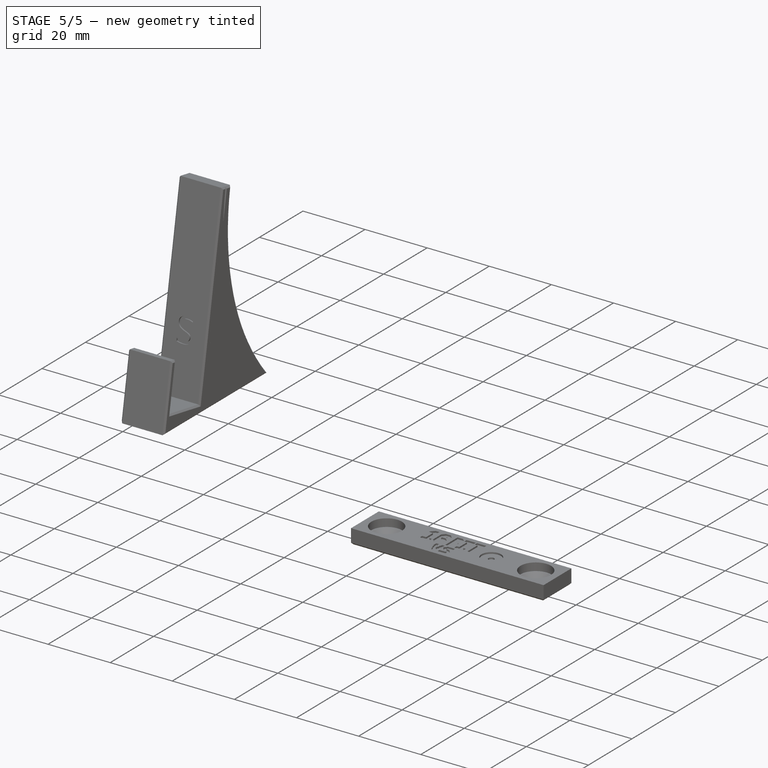
[diagram: stage 5 of 5 — iso view after this stage's code; geometry added in this stage tinted green]
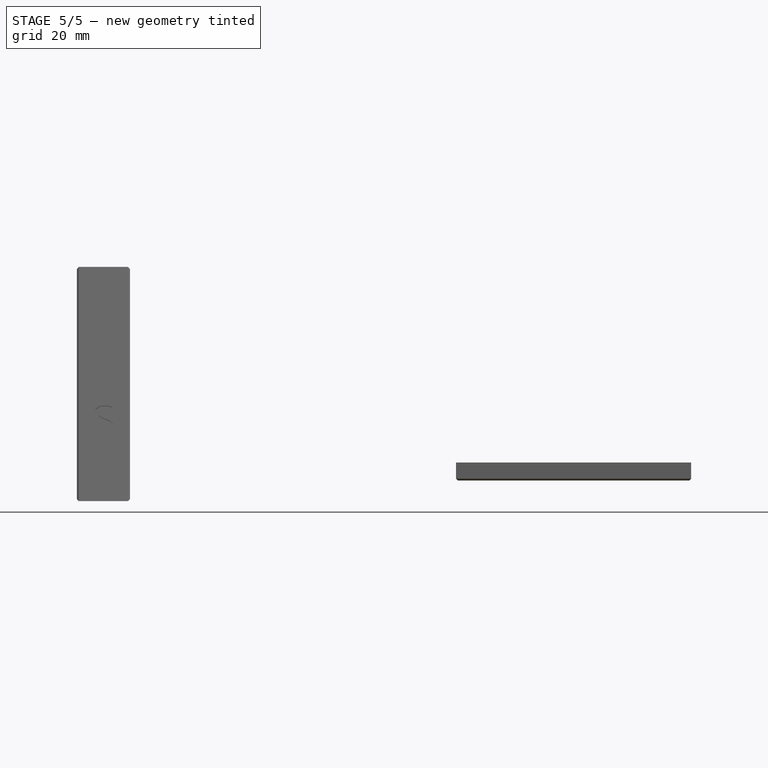
[diagram: stage 5 of 5 — front view after this stage's code; geometry added in this stage tinted green]
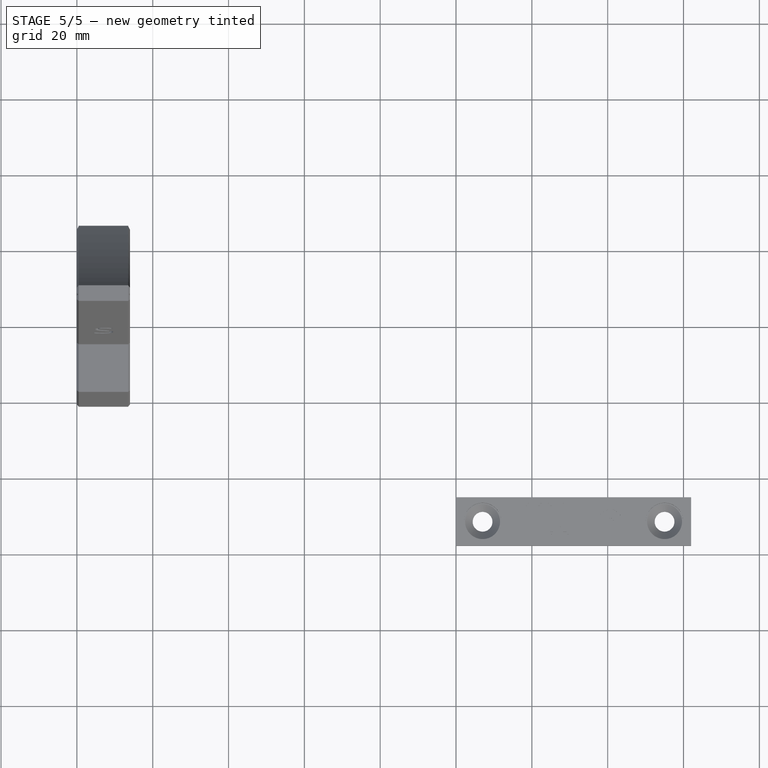
[diagram: stage 5 of 5 — top view after this stage's code; geometry added in this stage tinted green]
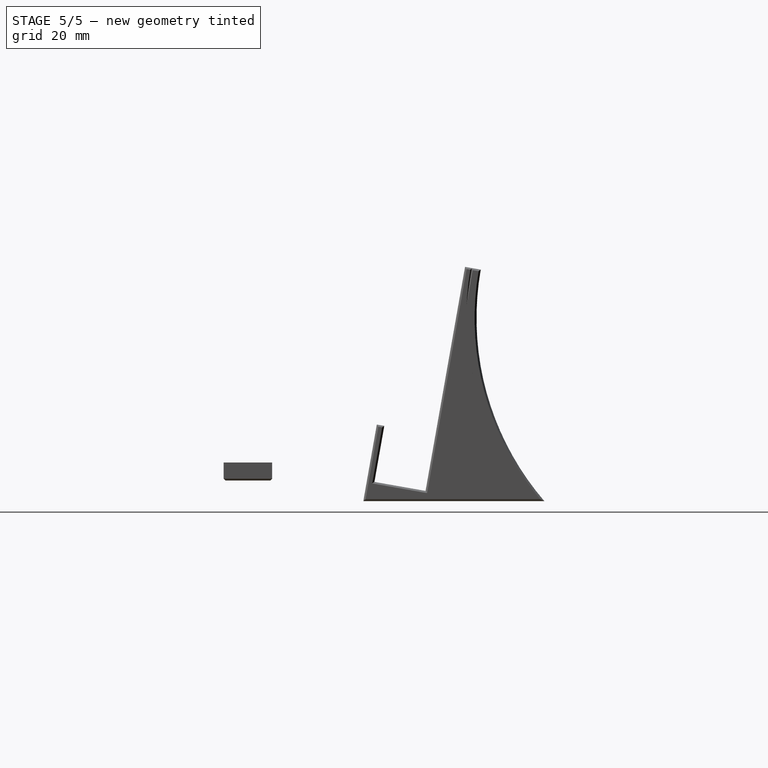
[diagram: stage 5 of 5 — right view after this stage's code; geometry added in this stage tinted green]
FEATURE [Sketcher::SketchObject] Sketch002
  ExternalGeometry = -> [Pad001]
  FullyConstrained = true
  MapMode = 5
  Placement = pos=(7e-16,0,0) rot=(0.540716,-0.6444,-0.540716;1.99673rad)
  Support = -> [Pad001]
  sketch-geometry (8):
    g0: LineSegment StartX=-23.2892 StartY=10.6259 StartZ=0 EndX=-23.897 EndY=7.17903 EndZ=0
    g1: LineSegment StartX=-23.897 StartY=7.17903 StartZ=0 EndX=-32.9572 EndY=8.7766 EndZ=0
    g2: LineSegment StartX=-32.9572 StartY=8.7766 StartZ=0 EndX=-32.3495 EndY=12.2234 EndZ=0
    g3: LineSegment StartX=-32.3495 StartY=12.2234 StartZ=0 EndX=-23.2892 EndY=10.6259 EndZ=0
    g4: LineSegment StartX=-35.3927 StartY=5.90591 StartZ=0 EndX=-22.5902 EndY=3.64847 EndZ=0
    g5: LineSegment StartX=-22.5902 StartY=3.64847 StartZ=0 EndX=-23.4585 EndY=-1.27556 EndZ=0
    g6: LineSegment StartX=-23.4585 StartY=-1.27556 StartZ=0 EndX=-36.261 EndY=0.981868 EndZ=0
    g7: LineSegment StartX=-36.261 StartY=0.981868 StartZ=0 EndX=-35.3927 EndY=5.90591 EndZ=0
  constraints (16):
    c: Coincident(g0,g-3)
    c: Coincident(g0,g-4)
    c: Coincident(g1,g0)
    c: Coincident(g1,g-4)
    c: Coincident(g2,g1)
    c: Coincident(g2,g-3)
    c: Coincident(g3,g2)
    c: Coincident(g3,g0)
    c: Coincident(g4,g-5)
    c: Coincident(g4,g-6)
    c: Coincident(g5,g4)
    c: Coincident(g5,g-6)
    c: Coincident(g6,g5)
    c: Coincident(g6,g-5)
    c: Coincident(g7,g6)
    c: Coincident(g7,g4)
FEATURE [PartDesign::Pad] Pad002
  BaseFeature = -> Pad001
  Direction = (-1,2e-16,1e-16)
  Length = 10
  Length2 = 10
  Placement = pos=(0,0,0) rot=(-1,0,0;0.174533rad)
  Profile = -> Sketch002
  ReferenceAxis = -> Sketch002 [N_Axis]
  Refine = true
  Type = 3
  UpToFace = -> Pad001 [Face91]
FEATURE [Sketcher::SketchObject] Sketch003
  ExternalGeometry = -> [Clone001]
  FullyConstrained = true
  MapMode = 5
  Placement = pos=(7e-16,0,0) rot=(0.540716,-0.6444,-0.540716;1.99673rad)
  Support = -> [Clone001]
  sketch-geometry (4):
    g0: LineSegment StartX=-23.2892 StartY=10.6259 StartZ=0 EndX=-23.897 EndY=7.17903 EndZ=0
    g1: LineSegment StartX=-23.897 StartY=7.17903 StartZ=0 EndX=-32.9572 EndY=8.7766 EndZ=0
    g2: LineSegment StartX=-32.9572 StartY=8.7766 StartZ=0 EndX=-32.3495 EndY=12.2234 EndZ=0
    g3: LineSegment StartX=-23.2892 StartY=10.6259 StartZ=0 EndX=-32.3495 EndY=12.2234 EndZ=0
  constraints (8):
    c: Coincident(g0,g-3)
    c: Coincident(g0,g-4)
    c: Coincident(g1,g0)
    c: Coincident(g1,g-4)
    c: Coincident(g2,g1)
    c: Coincident(g2,g-3)
    c: Coincident(g3,g0)
    c: Coincident(g3,g2)
FEATURE [PartDesign::Chamfer] Chamfer002
  Angle = 45
  Base = -> Pad002 [Face84,Face83]
  BaseFeature = -> Pad002
  ChamferType = 0
  FlipDirection = false
  Placement = pos=(0,0,0) rot=(-1,0,0;0.174533rad)
  Size = 0.5
  Size2 = 1
  SupportTransform = false
  UseAllEdges = false
FEATURE [Sketcher::SketchObject] Sketch008  label="DVD Icon"
  FullyConstrained = true
  MapMode = 5
  Support = -> [XY_Plane003]
  sketch-geometry (2):
    g0: Circle CenterX=0 CenterY=0 CenterZ=0 NormalX=0 NormalY=0 NormalZ=1 AngleXU=0 Radius=3.136
    g1: Circle CenterX=0 CenterY=0 CenterZ=0 NormalX=0 NormalY=0 NormalZ=1 AngleXU=0 Radius=0.893
  constraints (4):
    c: Coincident(g1,g0)
    c: Diameter(g0) = 6.272
    c: Diameter(g1) = 1.786
    c: Coincident(g0,g-1)
FEATURE [Sketcher::SketchObject] Sketch009  label="DVD Icon001"
  AttachmentOffset = pos=(0,0,-10) rot=(0,0,1;0rad)
  ExternalGeometry = -> [Chamfer002]
  FullyConstrained = true
  MapMode = 5
  Placement = pos=(0,0,-10) rot=(0,0,1;0rad)
  Support = -> [XY_Plane002]
  sketch-geometry (3):
    g0: Circle CenterX=7 CenterY=41.1192 CenterZ=0 NormalX=0 NormalY=0 NormalZ=1 AngleXU=0 Radius=3.136
    g1: LineSegment StartX=7 StartY=41.1192 StartZ=0 EndX=7 EndY=44.2552 EndZ=0
    g2: LineSegment StartX=7 StartY=44.2552 StartZ=0 EndX=7 EndY=46.2552 EndZ=0
  constraints (8):
    c: Diameter(g0) = 6.272
    c: Coincident(g1,g0)
    c: PointOnObject(g1,g0)
    c: Vertical(g1)
    c: Symmetric(g-3,g-3,g2)
    c: Perpendicular(g-3,g2)
    c: Distance(g2) = 2
    c: Coincident(g2,g1)
FEATURE [Sketcher::SketchObject] Sketch010  label="DVD Icon002"
  AttachmentOffset = pos=(0,0,-9) rot=(0,1,0;3.14159rad)
  ExternalGeometry = -> [Chamfer003]
  FullyConstrained = true
  MapMode = 5
  Placement = pos=(0,0,-9) rot=(0,1,0;3.14159rad)
  Support = -> [XY_Plane003]
  sketch-geometry (3):
    g0: Circle CenterX=-7 CenterY=17.7446 CenterZ=0 NormalX=0 NormalY=0 NormalZ=1 AngleXU=0 Radius=3.136
    g1: LineSegment StartX=-7 StartY=17.7446 StartZ=0 EndX=-7 EndY=20.8806 EndZ=0
    g2: LineSegment StartX=-7 StartY=20.8806 StartZ=0 EndX=-7 EndY=22.8806 EndZ=0
  constraints (8):
    c: Diameter(g0) = 6.272
    c: Coincident(g1,g0)
    c: PointOnObject(g1,g0)
    c: Vertical(g1)
    c: Coincident(g2,g1)
    c: Vertical(g2)
    c: Symmetric(g-3,g-3,g2)
    c: Distance(g2) = 2
FEATURE [Sketcher::SketchObject] Sketch011  label="DVD Icon003"
  AttachmentOffset = pos=(0,0,-9) rot=(0,1,0;3.14159rad)
  ExternalGeometry = -> [Chamfer]
  FullyConstrained = true
  MapMode = 5
  Placement = pos=(0,0,-9) rot=(0,1,0;3.14159rad)
  Support = -> [XY_Plane004]
  sketch-geometry (3):
    g0: Circle CenterX=-7 CenterY=17.7446 CenterZ=0 NormalX=0 NormalY=0 NormalZ=1 AngleXU=0 Radius=3.136
    g1: LineSegment StartX=-7 StartY=17.7446 StartZ=0 EndX=-7 EndY=20.8806 EndZ=0
    g2: LineSegment StartX=-7 StartY=20.8806 StartZ=0 EndX=-7 EndY=22.8806 EndZ=0
  constraints (8):
    c: Diameter(g0) = 6.272
    c: Coincident(g1,g0)
    c: PointOnObject(g1,g0)
    c: Vertical(g1)
    c: Coincident(g2,g1)
    c: Parallel(g2,g1)
    c: Symmetric(g-3,g-3,g2)
    c: Distance(g2) = 2
FEATURE [Part::Part2DObjectPython] ShapeString002  # Draft 2D object (typed FeaturePython)
  FontFile = F:/16 Bit Git Repro/16 Bit Store/Font/OpenSans-Regular.ttf
  MakeFace = true
  Placement = pos=(3.72,7.94,-8.94) rot=(1,0,0;3.14159rad)
  Size = 10
  String = L
  Tracking = 0
FEATURE [Part::Part2DObjectPython] ShapeString003  # Draft 2D object (typed FeaturePython)
  FontFile = F:/16 Bit Git Repro/16 Bit Store/Font/OpenSans-Regular.ttf
  MakeFace = true
  Placement = pos=(3.43,7.94,-8.94) rot=(1,0,0;3.14159rad)
  Size = 10
  String = R
  Tracking = 0
FEATURE [PartDesign::Pocket] Pocket004
  BaseFeature = -> Chamfer002
  Direction = (0,0,-1)
  Length = 0
  Length2 = 5
  Offset = 0.5
  Placement = pos=(0,0,0) rot=(-1,0,0;0.174533rad)
  Profile = -> Sketch009
  ReferenceAxis = -> Sketch009 [N_Axis]
  Refine = true
  Reversed = true
  Type = 3
  UpToFace = -> Chamfer002 [Face79]
FEATURE [Sketcher::SketchObject] Sketch012
  ExternalGeometry = -> [Pocket004]
  FullyConstrained = true
  MapMode = 5
  Placement = pos=(-2.118e-13,2.36816e-06,-4.82972) rot=(1,0,0;3.14159rad)
  Support = -> [Pocket004]
  sketch-geometry (1):
    g0: Circle CenterX=7 CenterY=-41.1192 CenterZ=0 NormalX=0 NormalY=0 NormalZ=1 AngleXU=0 Radius=0.893
  constraints (2):
    c: Coincident(g0,g-3)
    c: Diameter(g0) = 1.786
FEATURE [PartDesign::Pocket] Pocket005
  BaseFeature = -> Pocket004
  Direction = (4.38e-14,-4.9033e-07,1)
  Length = 0.5
  Length2 = 5
  Placement = pos=(0,0,0) rot=(-1,0,0;0.174533rad)
  Profile = -> Sketch012
  ReferenceAxis = -> Sketch012 [N_Axis]
  Type = 0
FEATURE [PartDesign::FeatureBase] Clone005
  BaseFeature = -> Pocket015
  Placement = pos=(0,0,0) rot=(-1,0,0;0.174533rad)
FEATURE [Sketcher::SketchObject] Sketch017
  ExternalGeometry = -> [Clone005]
  FullyConstrained = true
  MapMode = 5
  Placement = pos=(14,2.4e-15,8.1e-15) rot=(0.540716,0.6444,0.540716;1.99673rad)
  Support = -> [Clone005]
  sketch-geometry (4):
    g0: LineSegment StartX=31.3074 StartY=8.77833 StartZ=0 EndX=30.6992 EndY=12.2251 EndZ=0
    g1: LineSegment StartX=30.6992 StartY=12.2251 StartZ=0 EndX=21.6392 EndY=10.6265 EndZ=0
    g2: LineSegment StartX=21.6392 StartY=10.6265 StartZ=0 EndX=22.2473 EndY=7.17976 EndZ=0
    g3: LineSegment StartX=22.2473 StartY=7.17976 StartZ=0 EndX=31.3074 EndY=8.77833 EndZ=0
  constraints (8):
    c: Coincident(g1,g0)
    c: Coincident(g2,g1)
    c: Coincident(g3,g2)
    c: Coincident(g3,g0)
    c: Coincident(g1,g-3)
    c: Coincident(g0,g-4)
    c: Coincident(g2,g-3)
    c: Coincident(g-4,g0)
FEATURE [PartDesign::Pad] Pad009
  BaseFeature = -> Clone005
  Direction = (1,2e-16,6e-16)
  Length = 2
  Length2 = 10
  Placement = pos=(0,0,0) rot=(-1,0,0;0.174533rad)
  Profile = -> Sketch017
  ReferenceAxis = -> Sketch017 [N_Axis]
  Refine = true
  Reversed = true
  Type = 0
FEATURE [PartDesign::Chamfer] Chamfer004
  Angle = 45
  Base = -> Pad009 [Face111,Face3]
  BaseFeature = -> Pad009
  ChamferType = 0
  FlipDirection = false
  Placement = pos=(0,0,0) rot=(-1,0,0;0.174533rad)
  Size = 0.5
  Size2 = 1
  SupportTransform = false
  UseAllEdges = false
FEATURE [Sketcher::SketchObject] Sketch021  label="DVD Icon005"
  AttachmentOffset = pos=(0,0,-9) rot=(0,1,0;3.14159rad)
  ExternalGeometry = -> [Chamfer006]
  FullyConstrained = true
  MapMode = 5
  Placement = pos=(0,0,-9) rot=(0,1,0;3.14159rad)
  Support = -> [XY_Plane008,Chamfer006]
  sketch-geometry (3):
    g0: Circle CenterX=-7 CenterY=16.121 CenterZ=0 NormalX=0 NormalY=0 NormalZ=1 AngleXU=0 Radius=3.136
    g1: LineSegment StartX=-7 StartY=16.121 StartZ=0 EndX=-7 EndY=19.257 EndZ=0
    g2: LineSegment StartX=-7 StartY=19.257 StartZ=0 EndX=-7 EndY=21.257 EndZ=0
  constraints (8):
    c: Diameter(g0) = 6.272
    c: Coincident(g1,g0)
    c: PointOnObject(g1,g0)
    c: Vertical(g1)
    c: Coincident(g2,g1)
    c: Vertical(g2)
    c: Symmetric(g-3,g-3,g2)
    c: Distance(g2) = 2
FEATURE [Sketcher::SketchObject] Sketch022  label="DVD Icon006"
  AttachmentOffset = pos=(0,0,-9) rot=(0,1,0;3.14159rad)
  ExternalGeometry = -> [Chamfer004]
  FullyConstrained = true
  MapMode = 5
  Placement = pos=(0,0,-9) rot=(0,1,0;3.14159rad)
  Support = -> [XY_Plane009,Chamfer004]
  sketch-geometry (3):
    g0: Circle CenterX=-7 CenterY=16.121 CenterZ=0 NormalX=0 NormalY=0 NormalZ=1 AngleXU=0 Radius=3.136
    g1: LineSegment StartX=-7 StartY=16.121 StartZ=0 EndX=-7 EndY=19.257 EndZ=0
    g2: LineSegment StartX=-7 StartY=19.257 StartZ=0 EndX=-7 EndY=21.257 EndZ=0
  constraints (8):
    c: Diameter(g0) = 6.272
    c: Coincident(g1,g0)
    c: PointOnObject(g1,g0)
    c: Vertical(g1)
    c: Coincident(g2,g1)
    c: Parallel(g2,g1)
    c: Symmetric(g-3,g-3,g2)
    c: Distance(g2) = 2
FEATURE [PartDesign::Pocket] Pocket021
  BaseFeature = -> Chamfer004
  Direction = (-1e-16,0,1)
  Length = 0
  Length2 = 5
  Offset = 0.5
  Placement = pos=(0,0,0) rot=(-1,0,0;0.174533rad)
  Profile = -> Sketch022
  ReferenceAxis = -> Sketch022 [N_Axis]
  Type = 3
  UpToFace = -> Chamfer004 [Face111]
FEATURE [PartDesign::Pocket] Pocket023
  BaseFeature = -> Pocket021
  Direction = (0,0,1)
  Length = 0
  Length2 = 5
  Offset = 0.5
  Placement = pos=(0,0,0) rot=(-1,0,0;0.174533rad)
  Profile = -> ShapeString007
  ReferenceAxis = -> ShapeString007 [N_Axis]
  Type = 3
  UpToFace = -> Pocket021 [Face111]
FEATURE [Sketcher::SketchObject] Sketch026
  ExternalGeometry = -> [Pocket023]
  FullyConstrained = true
  MapMode = 5
  Placement = pos=(-5e-16,0.000502753,-4.54508) rot=(1,0,0;3.1417rad)
  Support = -> [Pocket023]
  sketch-geometry (1):
    g0: Circle CenterX=7 CenterY=-16.1204 CenterZ=0 NormalX=0 NormalY=0 NormalZ=1 AngleXU=0 Radius=0.893
  constraints (2):
    c: Coincident(g0,g-3)
    c: Diameter(g0) = 1.786
FEATURE [PartDesign::Pocket] Pocket027
  BaseFeature = -> Pocket023
  Direction = (1e-16,-0.000110615,1)
  Length = 0.5
  Length2 = 5
  Placement = pos=(0,0,0) rot=(-1,0,0;0.174533rad)
  Profile = -> Sketch026
  ReferenceAxis = -> Sketch026 [N_Axis]
  Type = 0
FEATURE [Sketcher::SketchObject] Sketch038
  ExternalGeometry = -> [Pocket033]
  FullyConstrained = true
  MapMode = 5
  Placement = pos=(-3e-16,-9.53e-14,-4.92521) rot=(1,0,0;3.14159rad)
  Support = -> [Pocket033]
  sketch-geometry (1):
    g0: Circle CenterX=7 CenterY=-18.2862 CenterZ=0 NormalX=0 NormalY=0 NormalZ=1 AngleXU=0 Radius=0.893
  constraints (2):
    c: Coincident(g0,g-3)
    c: Diameter(g0) = 1.786
FEATURE [PartDesign::Pocket] Pocket038
  BaseFeature = -> Pocket033
  Direction = (1e-16,1.97e-14,1)
  Length = 0.5
  Length2 = 5
  Placement = pos=(0,0,0) rot=(-1,0,0;0.174533rad)
  Profile = -> Sketch038
  ReferenceAxis = -> Sketch038 [N_Axis]
  Type = 0
FEATURE [PartDesign::Body] Body010  label="Lg Kit Left"
  BaseFeature = -> Pad011
  Group = -> [Clone007,Pocket030,Pocket031,Sketch033,Sketch032,Sketch030,Pad013,Chamfer009,Sketch034,ShapeString010,Pocket032,Pocket033,Sketch038,Pocket038]
  Origin = -> Origin013
  Placement = pos=(100,0,0) rot=(0,0,1;0rad)
  Tip = -> Pocket038
FEATURE [Sketcher::SketchObject] Sketch039
  ExternalGeometry = -> [Pocket035]
  FullyConstrained = true
  MapMode = 5
  Placement = pos=(-3e-16,-9.53e-14,-4.92521) rot=(1,0,0;3.14159rad)
  Support = -> [Pocket035]
  sketch-geometry (1):
    g0: Circle CenterX=7 CenterY=-18.2862 CenterZ=0 NormalX=0 NormalY=0 NormalZ=1 AngleXU=0 Radius=0.893
  constraints (2):
    c: Coincident(g0,g-3)
    c: Diameter(g0) = 1.786
FEATURE [PartDesign::Pocket] Pocket039
  BaseFeature = -> Pocket035
  Direction = (1e-16,1.97e-14,1)
  Length = 0.5
  Length2 = 5
  Placement = pos=(0,0,0) rot=(-1,0,0;0.174533rad)
  Profile = -> Sketch039
  ReferenceAxis = -> Sketch039 [N_Axis]
  Type = 0
FEATURE [Sketcher::SketchObject] Sketch023  label="DVD Icon007"
  AttachmentOffset = pos=(0,0,-9) rot=(0,1,0;3.14159rad)
  ExternalGeometry = -> [Chamfer012]
  FullyConstrained = true
  MapMode = 5
  Placement = pos=(0,0,-9) rot=(0,1,0;3.14159rad)
  Support = -> [XY_Plane007]
  sketch-geometry (3):
    g0: Circle CenterX=-7 CenterY=39.494 CenterZ=0 NormalX=0 NormalY=0 NormalZ=1 AngleXU=0 Radius=3.136
    g1: LineSegment StartX=-7 StartY=39.494 StartZ=0 EndX=-7 EndY=42.63 EndZ=0
    g2: LineSegment StartX=-7 StartY=42.63 StartZ=0 EndX=-7 EndY=44.63 EndZ=0
  constraints (8):
    c: Diameter(g0) = 6.272
    c: Coincident(g1,g0)
    c: PointOnObject(g1,g0)
    c: Vertical(g1)
    c: Coincident(g2,g1)
    c: Vertical(g2)
    c: Symmetric(g-3,g-3,g2)
    c: Distance(g2) = 2
FEATURE [PartDesign::Pocket] Pocket024
  BaseFeature = -> Chamfer012
  Direction = (-1e-16,0,1)
  Length = 0
  Length2 = 5
  Offset = 0.5
  Placement = pos=(0,0,0) rot=(-1,0,0;0.174533rad)
  Profile = -> Sketch023
  ReferenceAxis = -> Sketch023 [N_Axis]
  Type = 3
  UpToFace = -> Chamfer012 [Face93]
FEATURE [Sketcher::SketchObject] Sketch024
  ExternalGeometry = -> [Pocket024]
  FullyConstrained = true
  MapMode = 5
  Placement = pos=(-1.823e-13,0.000502753,-4.54508) rot=(1,0,0;3.1417rad)
  Support = -> [Pocket024]
  sketch-geometry (1):
    g0: Circle CenterX=7 CenterY=-39.4934 CenterZ=0 NormalX=0 NormalY=0 NormalZ=1 AngleXU=0 Radius=0.893
  constraints (2):
    c: Coincident(g0,g-3)
    c: Diameter(g0) = 1.786
FEATURE [PartDesign::Pocket] Pocket025
  BaseFeature = -> Pocket024
  Direction = (4.01e-14,-0.000110615,1)
  Length = 0.5
  Length2 = 5
  Placement = pos=(0,0,0) rot=(-1,0,0;0.174533rad)
  Profile = -> Sketch024
  ReferenceAxis = -> Sketch024 [N_Axis]
  Type = 0
FEATURE [Sketcher::SketchObject] Sketch036  label="DVD Icon010"
  AttachmentOffset = pos=(0,0,-9) rot=(0,1,0;3.14159rad)
  ExternalGeometry = -> [Chamfer013]
  FullyConstrained = true
  MapMode = 5
  Placement = pos=(0,0,-9) rot=(0,1,0;3.14159rad)
  Support = -> [XY_Plane012]
  sketch-geometry (3):
    g0: Circle CenterX=-7 CenterY=41.6609 CenterZ=0 NormalX=0 NormalY=0 NormalZ=1 AngleXU=0 Radius=3.136
    g1: LineSegment StartX=-7 StartY=41.6609 StartZ=0 EndX=-7 EndY=44.7969 EndZ=0
    g2: LineSegment StartX=-7 StartY=44.7969 StartZ=0 EndX=-7 EndY=46.7969 EndZ=0
  constraints (8):
    c: Diameter(g0) = 6.272
    c: Coincident(g1,g0)
    c: PointOnObject(g1,g0)
    c: Vertical(g1)
    c: Coincident(g2,g1)
    c: Vertical(g2)
    c: Distance(g2) = 2
    c: Symmetric(g-3,g-3,g2)
FEATURE [PartDesign::Pocket] Pocket036
  BaseFeature = -> Chamfer013
  Direction = (-1e-16,0,1)
  Length = 0
  Length2 = 5
  Offset = 0.5
  Placement = pos=(0,0,0) rot=(-1,0,0;0.174533rad)
  Profile = -> Sketch036
  ReferenceAxis = -> Sketch036 [N_Axis]
  Type = 3
  UpToFace = -> Chamfer013 [Face65]
FEATURE [Sketcher::SketchObject] Sketch037
  ExternalGeometry = -> [Pocket036]
  FullyConstrained = true
  MapMode = 5
  Placement = pos=(-2.198e-13,8.409e-13,-4.92521) rot=(1,0,0;3.14159rad)
  Support = -> [Pocket036]
  sketch-geometry (1):
    g0: Circle CenterX=7 CenterY=-41.6609 CenterZ=0 NormalX=0 NormalY=0 NormalZ=1 AngleXU=0 Radius=0.893
  constraints (2):
    c: Coincident(g0,g-3)
    c: Diameter(g0) = 1.786
FEATURE [PartDesign::Pocket] Pocket037
  BaseFeature = -> Pocket036
  Direction = (4.46e-14,-1.704e-13,1)
  Length = 0.5
  Length2 = 5
  Placement = pos=(0,0,0) rot=(-1,0,0;0.174533rad)
  Profile = -> Sketch037
  ReferenceAxis = -> Sketch037 [N_Axis]
  Type = 0
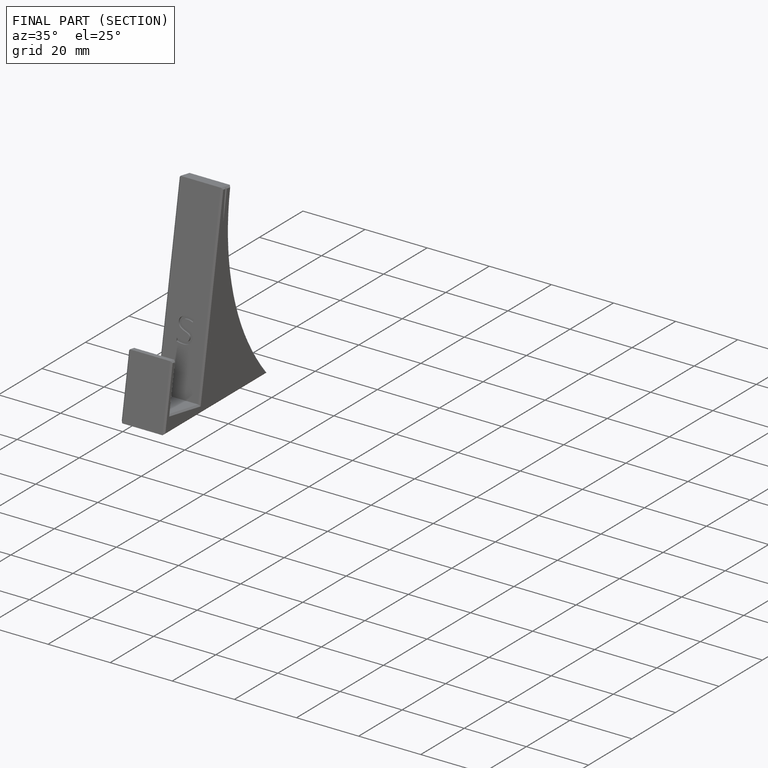
[diagram: finished part — half-section view (interior)]
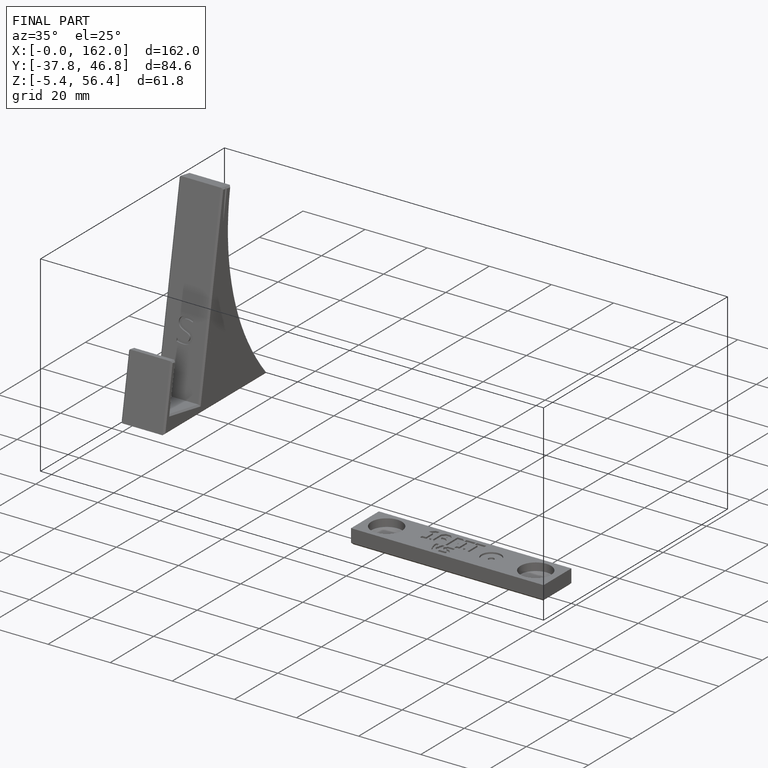
[diagram: finished part — iso view with bounding-box wireframe]
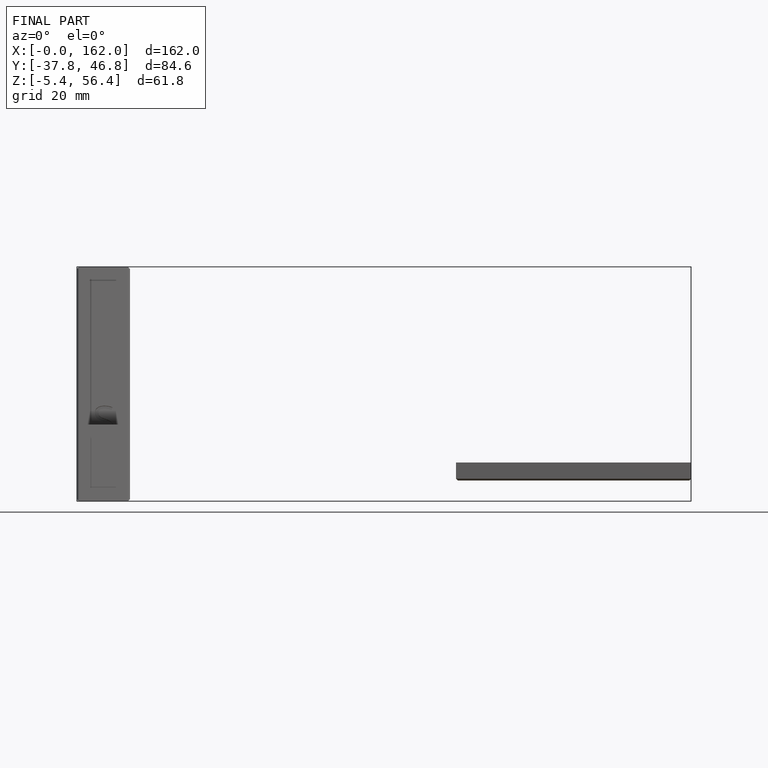
[diagram: finished part — front view with bounding-box wireframe]
